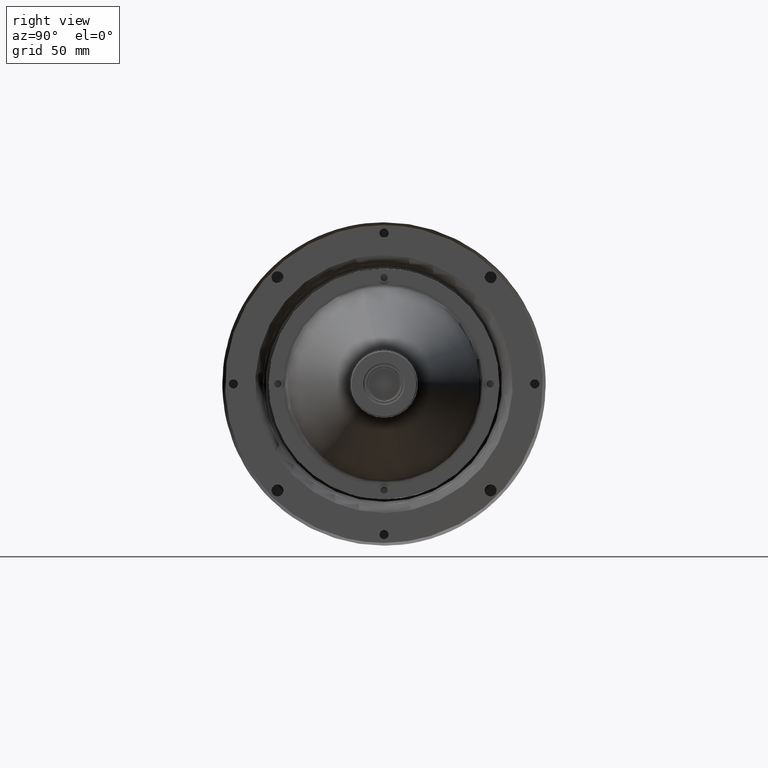
[diagram: clean part render]
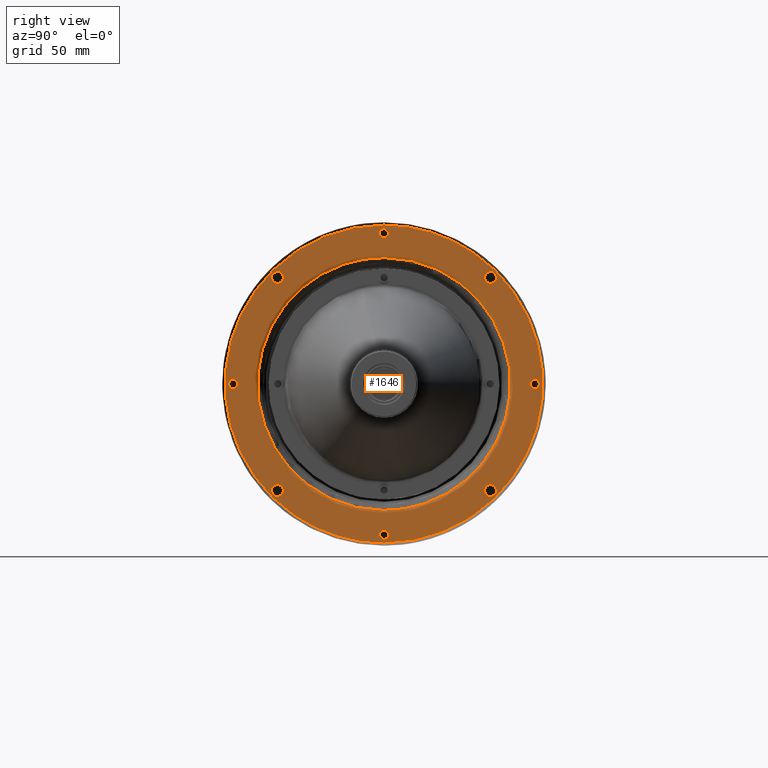
[diagram: same view with one face highlighted and labeled with its STEP entity id]
A machine part, right view. The second image highlights one B-rep face of the part: STEP entity #1646.
In plain terms, the highlighted planar face has unit normal (1, 0, 0).
Its self-contained STEP definition (entity closure, byte-faithful):
#1 = CARTESIAN_POINT ( 'NONE',  ( 152.0389117151870551, -54.99412155382960066, -9.212940494826550974 ) ) ;
#6 = CARTESIAN_POINT ( 'NONE',  ( 152.0389117161929846, -3.000007320924894959E-09, -154.9731538719080106 ) ) ;
#10 = CARTESIAN_POINT ( 'NONE',  ( 152.0389117160427759, -69.01470688993592262, -72.49842719486964882 ) ) ;
#88 = CARTESIAN_POINT ( 'NONE',  ( 152.0389117151869698, 1.999167105995378835, -148.9367870720627991 ) ) ;
#89 = CARTESIAN_POINT ( 'NONE',  ( 152.0389117151870266, -57.30885212915077886, -123.2172754247430078 ) ) ;
#102 = CARTESIAN_POINT ( 'NONE',  ( 152.0389117160862895, -60.03368661231577619, -102.5344377423510736 ) ) ;
#125 = CARTESIAN_POINT ( 'NONE',  ( 152.0389117333431841, -82.35670359767493665, -95.96019255417427019 ) ) ;
#127 = CARTESIAN_POINT ( 'NONE',  ( 152.0389117146874014, 8.623271893742373351, 18.20480479623995507 ) ) ;
#157 = CARTESIAN_POINT ( 'NONE',  ( 152.0389117151870551, -0.3272492347568590754, 16.52684612799821551 ) ) ;
#168 = CARTESIAN_POINT ( 'NONE',  ( 152.0389117158248951, 10.27754972801935907, -154.5153430743503975 ) ) ;
#193 = CARTESIAN_POINT ( 'NONE',  ( 152.0389117151870551, -1.259047450918690414, 11.84238015711056846 ) ) ;
#217 = CARTESIAN_POINT ( 'NONE',  ( 152.0389117191332957, -25.48818544027075461, -151.1442903453322799 ) ) ;
#307 = CARTESIAN_POINT ( 'NONE',  ( 152.0389117317797343, -70.68190507948034451, -118.7804306667896554 ) ) ;
#430 = CARTESIAN_POINT ( 'NONE',  ( 152.0389117155934855, 61.40953275300001479, -126.3826866236724698 ) ) ;
#466 = CARTESIAN_POINT ( 'NONE',  ( 152.0389117155935139, 61.40953275299998637, -10.06362111899351852 ) ) ;
#476 = CARTESIAN_POINT ( 'NONE',  ( 152.0389117151870266, -61.32494395216883021, -10.91430174317345703 ) ) ;
#505 = CARTESIAN_POINT ( 'NONE',  ( 152.0389117151869698, 80.06553402911498551, -69.48220132292688334 ) ) ;
#509 = CARTESIAN_POINT ( 'NONE',  ( 152.0389117161419961, -34.91277995079087759, -127.9090443758167908 ) ) ;
#526 = CARTESIAN_POINT ( 'NONE',  ( 152.0389117151870266, 1.999167105995755200, -152.0095206719366843 ) ) ;
#595 = CARTESIAN_POINT ( 'NONE',  ( 152.0389117151869982, -84.43446597088498606, -69.48220132292695439 ) ) ;
#596 = EDGE_CURVE ( 'NONE', #3230, #15714, #4693, .T. ) ;
#618 = CARTESIAN_POINT ( 'NONE',  ( 152.0389117151869982, -0.6543697108971793241, -152.9080855636703120 ) ) ;
#656 = CARTESIAN_POINT ( 'NONE',  ( 152.0389117155935139, -61.40953275299919056, -10.06362111900618928 ) ) ;
#727 = CARTESIAN_POINT ( 'NONE',  ( 152.0389117151869982, -59.01021337716064608, -13.22903231817284642 ) ) ;
#788 = CARTESIAN_POINT ( 'NONE',  ( 152.0389117151869698, 80.99095254907312835, -66.03868790111499720 ) ) ;
#804 = CARTESIAN_POINT ( 'NONE',  ( 152.0389117151870266, -81.92275076525119459, -65.72315387200067960 ) ) ;
#807 = CARTESIAN_POINT ( 'NONE',  ( 152.0389117241696226, -52.70790384935113337, 0.8698762821666425893 ) ) ;
#811 = CARTESIAN_POINT ( 'NONE',  ( 152.0389117151870266, 60.75844999059297891, -124.3854097838201085 ) ) ;
#834 = B_SPLINE_CURVE_WITH_KNOTS ( 'NONE', 3,
 ( #11628, #7257, #15719, #4638, #14328, #15987, #11535, #12938, #157, #4556, #5859, #3058, #4727, #17213, #7346, #3151, #10398, #15813 ),
 .UNSPECIFIED., .F., .F.,
 ( 4, 2, 2, 2, 2, 2, 2, 2, 4 ),
 ( 0.000000000000000000, 0.06249999999999979183, 0.1249999999999995837, 0.1874999999999996392, 0.2499999999999997224, 0.3124999999999997780, 0.3749999999999998335, 0.4374999999999999445, 0.5000000000000000000 ),
 .UNSPECIFIED. ) ;
#838 = ORIENTED_EDGE ( 'NONE', *, *, #9159, .F. ) ;
#904 = CARTESIAN_POINT ( 'NONE',  ( 152.0389117151869982, -57.30885212851272570, -129.5480978230855271 ) ) ;
#1024 = CARTESIAN_POINT ( 'NONE',  ( 152.0389117151870266, -61.32494395217204186, -9.212940494838562699 ) ) ;
#1041 = VERTEX_POINT ( 'NONE', #11750 ) ;
#1045 = CARTESIAN_POINT ( 'NONE',  ( 152.0389117155934855, -61.40953275299920477, -126.3826866243275617 ) ) ;
#1057 = EDGE_CURVE ( 'NONE', #11883, #12243, #17361, .T. ) ;
#1077 = CARTESIAN_POINT ( 'NONE',  ( 152.0389117151869982, -80.06553402911502815, -66.96410642107305478 ) ) ;
#1084 = CARTESIAN_POINT ( 'NONE',  ( 152.0389117155934855, -61.40953275299920477, -126.3826866243275617 ) ) ;
#1096 = CARTESIAN_POINT ( 'NONE',  ( 152.0389117151869414, -80.06553402911494288, -69.48220132292681228 ) ) ;
#1145 = CARTESIAN_POINT ( 'NONE',  ( 152.0389117155935139, 54.90953275300081060, -10.06362111900618928 ) ) ;
#1162 = CARTESIAN_POINT ( 'NONE',  ( 152.0389117161457477, 62.15059989655853911, -37.91456331197745300 ) ) ;
#1225 = CARTESIAN_POINT ( 'NONE',  ( 152.0389117160601131, -66.86193107717176076, -85.85238816400165263 ) ) ;
#1234 = EDGE_CURVE ( 'NONE', #17520, #13662, #11559, .T. ) ;
#1258 = CARTESIAN_POINT ( 'NONE',  ( 152.0389117160635806, 22.62515995098180710, -2.882432523093848786 ) ) ;
#1273 = B_SPLINE_CURVE_WITH_KNOTS ( 'NONE', 3,
 ( #14960, #13039, #7355, #10750, #9169, #2190, #2280, #10474, #9265, #17654, #16427, #4807, #15135, #14865, #505, #7869, #13469, #13560 ),
 .UNSPECIFIED., .F., .F.,
 ( 4, 2, 2, 2, 2, 2, 2, 2, 4 ),
 ( 0.5000000000000000000, 0.5625000000000000000, 0.6250000000000000000, 0.6875000000000000000, 0.7500000000000000000, 0.8125000000000000000, 0.8750000000000000000, 0.9375000000000000000, 1.000000000000000000 ),
 .UNSPECIFIED. ) ;
#1301 = CARTESIAN_POINT ( 'NONE',  ( 152.0389117151870266, -2.499999999998898215, -150.1459046372514763 ) ) ;
#1352 = CARTESIAN_POINT ( 'NONE',  ( 152.0389117160403316, 4.968528497421182522, 0.7451102337029836820 ) ) ;
#1400 = EDGE_CURVE ( 'NONE', #13410, #14537, #1884, .T. ) ;
#1402 = CARTESIAN_POINT ( 'NONE',  ( 152.0389117151870551, -58.58495675817889747, -6.813621119001631143 ) ) ;
#1467 = CARTESIAN_POINT ( 'NONE',  ( 152.0389117151870266, 55.31972699085328316, -11.70038280521040264 ) ) ;
#1507 = CARTESIAN_POINT ( 'NONE',  ( 152.0389117160097783, -30.51659014786231339, -6.174419357326474511 ) ) ;
#1515 = VERTEX_POINT ( 'NONE', #5938 ) ;
#1554 = CARTESIAN_POINT ( 'NONE',  ( 152.0389117160179921, 0.4622198219536600150, 0.7752979427080239905 ) ) ;
#1573 = CARTESIAN_POINT ( 'NONE',  ( 152.0389117163786921, 5.138817509494542968, -154.9731538735093181 ) ) ;
#1600 = CARTESIAN_POINT ( 'NONE',  ( 152.0389117151870551, -0.3272492347395297707, 11.52684612799953179 ) ) ;
#1646 = ADVANCED_FACE ( 'NONE', ( #7778, #6482, #8490, #4216, #16966, #8213, #9887, #12153, #13900, #8400 ), #9610, .F. ) ;
#1669 = CARTESIAN_POINT ( 'NONE',  ( 152.0389117103006242, 48.67100214513889256, 3.770620140393961428 ) ) ;
#1684 = CARTESIAN_POINT ( 'NONE',  ( 152.0389117151869982, -59.01021337748569096, -123.2172754249144759 ) ) ;
#1694 = CARTESIAN_POINT ( 'NONE',  ( 152.0389117155935139, 2.500000000000000444, 14.02684612800897845 ) ) ;
#1705 = CARTESIAN_POINT ( 'NONE',  ( 152.0389117160949866, 2.190188772344439839E-08, -137.2231538718500019 ) ) ;
#1752 = CARTESIAN_POINT ( 'NONE',  ( 152.0389117151870551, 60.75844999079803443, -12.06089795891303673 ) ) ;
#1788 = CARTESIAN_POINT ( 'NONE',  ( 152.0389117151871119, 57.30885212882736823, -6.898209919830389225 ) ) ;
#1848 = CARTESIAN_POINT ( 'NONE',  ( 152.0389117151870266, 1.536366799937754157, -152.4723209779947695 ) ) ;
#1876 = CARTESIAN_POINT ( 'NONE',  ( 152.0389117151870551, 54.90953275300082481, -9.638197113832658758 ) ) ;
#1884 = B_SPLINE_CURVE_WITH_KNOTS ( 'NONE', 3,
 ( #10496, #7615, #3332, #14617, #526, #1848, #2027, #7706, #16360, #13398, #618, #4919, #10592, #17768, #3516, #9377, #10953, #11054 ),
 .UNSPECIFIED., .F., .F.,
 ( 4, 2, 2, 2, 2, 2, 2, 2, 4 ),
 ( 0.5000000000000000000, 0.5625000000000000000, 0.6250000000000000000, 0.6875000000000000000, 0.7500000000000000000, 0.8125000000000000000, 0.8750000000000000000, 0.9375000000000000000, 1.000000000000000000 ),
 .UNSPECIFIED. ) ;
#1903 = VERTEX_POINT ( 'NONE', #2126 ) ;
#1921 = CARTESIAN_POINT ( 'NONE',  ( 152.0389117155935139, 2.500000000000002220, -150.4731538719998412 ) ) ;
#1928 = CARTESIAN_POINT ( 'NONE',  ( 152.0389117151869698, 59.79629443949202994, -129.2224923859857029 ) ) ;
#2027 = CARTESIAN_POINT ( 'NONE',  ( 152.0389117151870266, 1.259047450927802680, -152.6576198428849693 ) ) ;
#2126 = CARTESIAN_POINT ( 'NONE',  ( 152.0389117155935139, -54.90953275300000769, -10.06362111899351852 ) ) ;
#2150 = EDGE_CURVE ( 'NONE', #9433, #2761, #11186, .T. ) ;
#2181 = CARTESIAN_POINT ( 'NONE',  ( 152.0389117191332957, -25.48818544027075461, -151.1442903453322799 ) ) ;
#2183 = ORIENTED_EDGE ( 'NONE', *, *, #2775, .F. ) ;
#2190 = CARTESIAN_POINT ( 'NONE',  ( 152.0389117151869982, 83.78636679993684311, -70.22232097799488315 ) ) ;
#2204 = EDGE_CURVE ( 'NONE', #13662, #3230, #13178, .T. ) ;
#2217 = CARTESIAN_POINT ( 'NONE',  ( 152.0389117151869698, 59.79629443891963092, -123.5428808616843099 ) ) ;
#2244 = CARTESIAN_POINT ( 'NONE',  ( 152.0389117161898866, -0.3081488524913671978, -137.2226378062479171 ) ) ;
#2280 = CARTESIAN_POINT ( 'NONE',  ( 152.0389117151869698, 83.50904745092690007, -70.40761984288502617 ) ) ;
#2342 = ORIENTED_EDGE ( 'NONE', *, *, #16643, .F. ) ;
#2378 = CARTESIAN_POINT ( 'NONE',  ( 152.0389117151869982, 81.59563028910197602, -65.78822218032993874 ) ) ;
#2426 = VERTEX_POINT ( 'NONE', #10643 ) ;
#2492 = CARTESIAN_POINT ( 'NONE',  ( 152.0389117151869982, -54.99412155374221101, -127.2333672478484203 ) ) ;
#2507 = CARTESIAN_POINT ( 'NONE',  ( 152.0389117151869982, -79.81506830832992705, -68.87752358289799304 ) ) ;
#2571 = CARTESIAN_POINT ( 'NONE',  ( 152.0389117161039962, 45.86441879428804214, -16.47604943235702990 ) ) ;
#2597 = CARTESIAN_POINT ( 'NONE',  ( 152.0389117151869982, -82.90436971089795293, -70.65808556367011306 ) ) ;
#2618 = CARTESIAN_POINT ( 'NONE',  ( 152.0389117151869698, -59.79629443920959631, -7.223815356852483660 ) ) ;
#2650 = CARTESIAN_POINT ( 'NONE',  ( 152.0389117151745495, 4.311653689656339772, 18.52684612853854418 ) ) ;
#2653 = EDGE_LOOP ( 'NONE', ( #16330, #6101 ) ) ;
#2711 = CARTESIAN_POINT ( 'NONE',  ( 152.0389117151870266, -60.99933851515294236, -8.426859432800378968 ) ) ;
#2721 = CARTESIAN_POINT ( 'NONE',  ( 152.0389117160280534, -68.52654866975393588, -58.98086754761820316 ) ) ;
#2761 = VERTEX_POINT ( 'NONE', #3430 ) ;
#2775 = EDGE_CURVE ( 'NONE', #10781, #3408, #7458, .T. ) ;
#2807 = CARTESIAN_POINT ( 'NONE',  ( 152.0389117151870551, -59.01021337717267556, -6.898209919830389225 ) ) ;
#2851 = CARTESIAN_POINT ( 'NONE',  ( 152.0389117161971626, 68.52654866774065567, -77.46544021909672040 ) ) ;
#2880 = CARTESIAN_POINT ( 'NONE',  ( 152.0389117090518880, 60.63134477974255532, -5.967150331950336728 ) ) ;
#3005 = CARTESIAN_POINT ( 'NONE',  ( 152.0389117160058845, -54.77956289436469461, -26.02709696846480369 ) ) ;
#3026 = CARTESIAN_POINT ( 'NONE',  ( 152.0389117334458433, -85.96293711749663657, -80.96455820863430120 ) ) ;
#3046 = CARTESIAN_POINT ( 'NONE',  ( 152.0389117151870266, -79.75000000000071054, -68.55040310674878867 ) ) ;
#3058 = CARTESIAN_POINT ( 'NONE',  ( 152.0389117151870266, 1.259047450920001809, 16.21131209888943303 ) ) ;
#3059 = CARTESIAN_POINT ( 'NONE',  ( 152.0389117151869982, 54.99412155391527790, -127.2333672484864451 ) ) ;
#3136 = CARTESIAN_POINT ( 'NONE',  ( 152.0389117151870266, -84.24916710599484304, -69.75952067193689743 ) ) ;
#3151 = CARTESIAN_POINT ( 'NONE',  ( 152.0389117151870266, 2.434931691668535958, 14.68121583890646775 ) ) ;
#3152 = CARTESIAN_POINT ( 'NONE',  ( 152.0389117151869698, 61.40953275304289605, -126.8081106288459523 ) ) ;
#3154 = CARTESIAN_POINT ( 'NONE',  ( 152.0389117151869982, 61.32494395217364769, -10.91430174316144175 ) ) ;
#3230 = VERTEX_POINT ( 'NONE', #9397 ) ;
#3250 = CARTESIAN_POINT ( 'NONE',  ( 152.0389117151869982, 55.31972699068519006, -124.7459249380811599 ) ) ;
#3281 = CARTESIAN_POINT ( 'NONE',  ( 152.0389117151869982, -60.99933851514673222, -11.70038280521040264 ) ) ;
#3311 = CARTESIAN_POINT ( 'NONE',  ( 152.0389117151870266, -84.68493169167005874, -68.87752358289810672 ) ) ;
#3327 = CARTESIAN_POINT ( 'NONE',  ( 152.0389117151870266, 61.40953275300077507, -10.48904512416733859 ) ) ;
#3332 = CARTESIAN_POINT ( 'NONE',  ( 152.0389117151869982, 2.434931691670887410, -151.1275235828977372 ) ) ;
#3338 = CARTESIAN_POINT ( 'NONE',  ( 152.0389117151869982, 61.32494395208632199, -125.5320059995135296 ) ) ;
#3356 = CARTESIAN_POINT ( 'NONE',  ( 152.0389117155935139, -2.499999999999342304, 14.02684612799131081 ) ) ;
#3357 = CARTESIAN_POINT ( 'NONE',  ( 152.0389117151869982, 1.999167106000905081, 12.49047932807004280 ) ) ;
#3370 = CARTESIAN_POINT ( 'NONE',  ( 152.0389117162070534, 17.85308526480040570, -135.0256618765632766 ) ) ;
#3402 = CARTESIAN_POINT ( 'NONE',  ( 152.0389117160949866, -0.4622198219536199915, -137.2216056867081875 ) ) ;
#3408 = VERTEX_POINT ( 'NONE', #1045 ) ;
#3430 = CARTESIAN_POINT ( 'NONE',  ( 152.0389117155934855, 84.74999999999964473, -68.22315387199972747 ) ) ;
#3478 = B_SPLINE_CURVE_WITH_KNOTS ( 'NONE', 3,
 ( #430, #3152, #5861, #17308, #8738, #13301, #1928, #15814, #6219, #14521, #10400, #16168, #7521, #6129, #13122, #3059, #4557, #17570 ),
 .UNSPECIFIED., .F., .F.,
 ( 4, 2, 2, 2, 2, 2, 2, 2, 4 ),
 ( 0.5000000000000000000, 0.5625000000000000000, 0.6250000000000000000, 0.6875000000000000000, 0.7500000000000000000, 0.8125000000000000000, 0.8750000000000000000, 0.9375000000000000000, 1.000000000000000000 ),
 .UNSPECIFIED. ) ;
#3479 = VERTEX_POINT ( 'NONE', #1705 ) ;
#3516 = CARTESIAN_POINT ( 'NONE',  ( 152.0389117151869982, -2.184465970884419406, -151.7322013229272102 ) ) ;
#3553 = CARTESIAN_POINT ( 'NONE',  ( 152.0389117162102366, 22.18694539316939895, -133.7139714214603430 ) ) ;
#3574 = EDGE_CURVE ( 'NONE', #12243, #11883, #6287, .T. ) ;
#3590 = DIRECTION ( 'NONE',  ( 0.000000000000000000, 1.000000000000000000, 0.000000000000000000 ) ) ;
#3609 = CARTESIAN_POINT ( 'NONE',  ( 152.0389117151870266, -83.50904745092695691, -66.03868790111502562 ) ) ;
#3688 = CARTESIAN_POINT ( 'NONE',  ( 152.0389117151869698, 84.43446597088502870, -66.96410642107312583 ) ) ;
#3778 = CARTESIAN_POINT ( 'NONE',  ( 152.0389117155934855, 79.75000000000035527, -68.22315387199999748 ) ) ;
#3795 = CARTESIAN_POINT ( 'NONE',  ( 152.0389117151870266, -83.78636679993689995, -66.22398676600516865 ) ) ;
#3866 = CARTESIAN_POINT ( 'NONE',  ( 152.0389117151869414, 80.06553402911497130, -66.96410642107308320 ) ) ;
#3886 = B_SPLINE_CURVE_WITH_KNOTS ( 'NONE', 3,
 ( #12213, #5312, #2244, #6802 ),
 .UNSPECIFIED., .F., .F.,
 ( 4, 4 ),
 ( 0.000000000000000000, 1.000000000000000000 ),
 .UNSPECIFIED. ) ;
#3988 = CARTESIAN_POINT ( 'NONE',  ( 152.0389117151869698, -56.52277106650797123, -129.2224923859857029 ) ) ;
#4002 = CARTESIAN_POINT ( 'NONE',  ( 152.0389117151870266, -81.92275076525109512, -70.72315387199927272 ) ) ;
#4054 = CARTESIAN_POINT ( 'NONE',  ( 152.0389117151869982, 83.50904745092691428, -66.03868790111501141 ) ) ;
#4067 = CARTESIAN_POINT ( 'NONE',  ( 152.0389117162173989, 34.51217049214734089, -128.1415802290879640 ) ) ;
#4080 = CARTESIAN_POINT ( 'NONE',  ( 152.0389117151869698, -57.73410874749815491, -129.6326866239563174 ) ) ;
#4142 = CARTESIAN_POINT ( 'NONE',  ( 152.0389117218018669, -39.66371708656604511, 9.099284600796115896 ) ) ;
#4204 = CARTESIAN_POINT ( 'NONE',  ( 152.0389117151869698, -59.79629443949043832, -123.5428808620142860 ) ) ;
#4216 = FACE_BOUND ( 'NONE', #14139, .T. ) ;
#4300 = CARTESIAN_POINT ( 'NONE',  ( 152.0389117151869698, -55.31972699101351054, -124.7459249375087893 ) ) ;
#4315 = CARTESIAN_POINT ( 'NONE',  ( 152.0389117160301282, -4.506409830240810876, 0.7768461250012790309 ) ) ;
#4337 = CARTESIAN_POINT ( 'NONE',  ( 152.0389117266449546, -44.31308800458874941, -142.9782217599150158 ) ) ;
#4347 = VERTEX_POINT ( 'NONE', #17599 ) ;
#4350 = CARTESIAN_POINT ( 'NONE',  ( 152.0389117162192747, 54.77956287676636293, -110.4192107996645120 ) ) ;
#4397 = CARTESIAN_POINT ( 'NONE',  ( 152.0389117155935139, -2.499999999999429789, -150.4731538720001538 ) ) ;
#4411 = CARTESIAN_POINT ( 'NONE',  ( 152.0389117160078740, -34.51217052251811168, -8.304727532964378156 ) ) ;
#4470 = CARTESIAN_POINT ( 'NONE',  ( 152.0389117155935139, 61.40953275299998637, -10.06362111899351852 ) ) ;
#4477 = CARTESIAN_POINT ( 'NONE',  ( 152.0389117080393078, 70.68190509615918415, -17.66587705905896755 ) ) ;
#4492 = CARTESIAN_POINT ( 'NONE',  ( 152.0389117151870266, -0.3272492347485950748, -147.9731538720006370 ) ) ;
#4556 = CARTESIAN_POINT ( 'NONE',  ( 152.0389117151870266, 0.3272492347408425539, 16.52684612800046793 ) ) ;
#4557 = CARTESIAN_POINT ( 'NONE',  ( 152.0389117151869982, 54.90953275304446635, -126.8081106295010301 ) ) ;
#4564 = CARTESIAN_POINT ( 'NONE',  ( 152.0389117101821626, 60.49640625380057912, -130.6102901822148681 ) ) ;
#4638 = CARTESIAN_POINT ( 'NONE',  ( 152.0389117151869698, -2.184465970888775033, 15.28589357891933886 ) ) ;
#4675 = CARTESIAN_POINT ( 'NONE',  ( 152.0389117151870551, 57.73410874782113211, -6.813621119001631143 ) ) ;
#4693 = B_SPLINE_CURVE_WITH_KNOTS ( 'NONE', 3,
 ( #5539, #6594, #16362, #5446, #13400, #16801, #4142, #9289, #807, #11127, #9722, #16896, #15502, #9815, #8609, #17088, #8422, #15687, #7125, #11313, #3026, #12806, #125, #12708, #10201, #307, #15872, #15784, #14395, #10103, #4337, #18382, #17365, #217 ),
 .UNSPECIFIED., .F., .F.,
 ( 4, 2, 2, 2, 2, 2, 2, 2, 2, 2, 2, 2, 2, 2, 2, 2, 4 ),
 ( 0.000000000000000000, 0.05656725362737573259, 0.1131345072547514652, 0.1697017608821271839, 0.2262690145095029304, 0.2828362681368786768, 0.3394035217642543678, 0.3959707753916301143, 0.4525380290190058608, 0.5091052826463815517, 0.5656725362737573537, 0.6222397899011330447, 0.6788070435285087356, 0.7353742971558845376, 0.7919415507832602286, 0.8485088044106360305, 0.9050760580380117215 ),
 .UNSPECIFIED. ) ;
#4727 = CARTESIAN_POINT ( 'NONE',  ( 152.0389117151869414, 1.536366799930609650, 16.02601323400024569 ) ) ;
#4738 = EDGE_CURVE ( 'NONE', #2761, #9433, #1273, .T. ) ;
#4744 = CARTESIAN_POINT ( 'NONE',  ( 152.0389117151869982, 58.58495675784677559, -123.1326866239579090 ) ) ;
#4764 = CARTESIAN_POINT ( 'NONE',  ( 152.0389117151870266, 2.434931691673071885, 13.37247641711041091 ) ) ;
#4807 = CARTESIAN_POINT ( 'NONE',  ( 152.0389117151869982, 80.99095254907311414, -70.40761984288501196 ) ) ;
#4817 = CARTESIAN_POINT ( 'NONE',  ( 152.0389117144047759, 25.48818544174925904, 14.69798260656799549 ) ) ;
#4834 = CARTESIAN_POINT ( 'NONE',  ( 152.0389117155934855, 61.40953275300001479, -126.3826866236724698 ) ) ;
#4919 = CARTESIAN_POINT ( 'NONE',  ( 152.0389117151870266, -1.259047450926120248, -152.6576198428853104 ) ) ;
#4946 = CARTESIAN_POINT ( 'NONE',  ( 152.0389117151870551, 56.16225591307789955, -7.464703881210362546 ) ) ;
#5013 = CARTESIAN_POINT ( 'NONE',  ( 152.0389117151869698, 57.73410874749973942, -123.1326866240436857 ) ) ;
#5019 = CARTESIAN_POINT ( 'NONE',  ( 152.0389117151869414, -55.31972699084546718, -11.70038280519962015 ) ) ;
#5044 = CARTESIAN_POINT ( 'NONE',  ( 152.0389117161994648, 9.012709092967535085, -136.7802746106165728 ) ) ;
#5189 = CARTESIAN_POINT ( 'NONE',  ( 152.0389117151870266, -84.24916710599491410, -66.68678707206322542 ) ) ;
#5223 = B_SPLINE_CURVE_WITH_KNOTS ( 'NONE', 3,
 ( #5503, #12671, #11184, #18347, #11278, #16955, #4204, #1684, #7088, #8668, #89, #15925, #12767, #17052, #4300, #8761, #14263, #7282 ),
 .UNSPECIFIED., .F., .F.,
 ( 4, 2, 2, 2, 2, 2, 2, 2, 4 ),
 ( 0.000000000000000000, 0.06249999999999976408, 0.1249999999999995282, 0.1874999999999992784, 0.2499999999999990563, 0.3124999999999988343, 0.3749999999999985567, 0.4374999999999983347, 0.5000000000000000000 ),
 .UNSPECIFIED. ) ;
#5257 = VERTEX_POINT ( 'NONE', #3356 ) ;
#5281 = CARTESIAN_POINT ( 'NONE',  ( 152.0389117155935139, -79.75000000000035527, -68.22315387199974168 ) ) ;
#5312 = CARTESIAN_POINT ( 'NONE',  ( 152.0389117161900572, -0.1540744259949441419, -137.2231538718498882 ) ) ;
#5320 = CARTESIAN_POINT ( 'NONE',  ( 152.0389117151870551, -54.90953275300085323, -9.638197113820323736 ) ) ;
#5371 = CARTESIAN_POINT ( 'NONE',  ( 152.0389117151870266, -80.25083289400518538, -66.68678707206309753 ) ) ;
#5446 = CARTESIAN_POINT ( 'NONE',  ( 152.0389117187433214, -20.39332089744877408, 16.25218221978580146 ) ) ;
#5458 = CARTESIAN_POINT ( 'NONE',  ( 152.0389117151870266, -55.56061551520199515, -12.06089795891303673 ) ) ;
#5462 = CARTESIAN_POINT ( 'NONE',  ( 152.0389117162203547, 45.51674424379907435, -120.2763355484895840 ) ) ;
#5501 = CARTESIAN_POINT ( 'NONE',  ( 152.0389117151870266, 1.536366799937264993, -148.4739867660048560 ) ) ;
#5503 = CARTESIAN_POINT ( 'NONE',  ( 152.0389117155934855, -61.40953275299920477, -126.3826866243275617 ) ) ;
#5539 = CARTESIAN_POINT ( 'NONE',  ( 152.0389117159099897, 2.999991857794929749E-09, 18.52684612837909839 ) ) ;
#5548 = CARTESIAN_POINT ( 'NONE',  ( 152.0389117151870266, -56.16225591307630793, -12.66253835678964279 ) ) ;
#5582 = CARTESIAN_POINT ( 'NONE',  ( 152.0389117068346252, 83.85750422969837814, -45.42208084084664677 ) ) ;
#5611 = CARTESIAN_POINT ( 'NONE',  ( 152.0389117160148658, -22.18694542917494061, -2.732336335078154654 ) ) ;
#5676 = CARTESIAN_POINT ( 'NONE',  ( 152.0389117089752631, 70.57227303901193238, -118.9333523028455062 ) ) ;
#5746 = CARTESIAN_POINT ( 'NONE',  ( 152.0389117160573846, 18.30018386531991936, -1.541739672135786110 ) ) ;
#5751 = EDGE_LOOP ( 'NONE', ( #17165, #14497 ) ) ;
#5792 = CARTESIAN_POINT ( 'NONE',  ( 152.0389117151869982, 0.6543697108983255184, -148.0382221803296829 ) ) ;
#5859 = CARTESIAN_POINT ( 'NONE',  ( 152.0389117151869414, 0.6543697108902438719, 16.46177781967240961 ) ) ;
#5861 = CARTESIAN_POINT ( 'NONE',  ( 152.0389117151869982, 61.32494395225781147, -127.2333672478484203 ) ) ;
#5885 = CARTESIAN_POINT ( 'NONE',  ( 152.0389117151870551, -1.259047450926656486, -148.2886879011150540 ) ) ;
#5896 = CARTESIAN_POINT ( 'NONE',  ( 152.0389117151870266, 2.500000000001132872, 13.69959689325981600 ) ) ;
#5938 = CARTESIAN_POINT ( 'NONE',  ( 152.0389117160234775, -2.869615815090440053E-08, 0.7768461278715170781 ) ) ;
#5944 = CARTESIAN_POINT ( 'NONE',  ( 152.0389117160234775, -2.869615815090440053E-08, 0.7768461278715170781 ) ) ;
#5959 = CARTESIAN_POINT ( 'NONE',  ( 152.0389117117481703, 35.17760726438696395, 11.24071145850829723 ) ) ;
#6075 = CARTESIAN_POINT ( 'NONE',  ( 152.0389117151870266, 0.3272492347581711369, 11.52684612800179487 ) ) ;
#6101 = ORIENTED_EDGE ( 'NONE', *, *, #1057, .F. ) ;
#6129 = CARTESIAN_POINT ( 'NONE',  ( 152.0389117151869982, 55.56061551540863519, -128.3799634641798662 ) ) ;
#6131 = CARTESIAN_POINT ( 'NONE',  ( 152.0389117151869982, 57.73410874783346003, -13.31362111899998801 ) ) ;
#6143 = CARTESIAN_POINT ( 'NONE',  ( 152.0389117155934855, 54.90953275300078218, -126.3826866243275617 ) ) ;
#6210 = EDGE_CURVE ( 'NONE', #3479, #14232, #3886, .T. ) ;
#6219 = CARTESIAN_POINT ( 'NONE',  ( 152.0389117151869698, 58.58495675850186757, -129.6326866239563174 ) ) ;
#6232 = CARTESIAN_POINT ( 'NONE',  ( 152.0389117151869982, 57.30885212851433863, -123.2172754249144759 ) ) ;
#6263 = CARTESIAN_POINT ( 'NONE',  ( 152.0389117162154093, 30.51659011551170053, -130.2718884030641675 ) ) ;
#6266 = EDGE_CURVE ( 'NONE', #14537, #13410, #8335, .T. ) ;
#6287 = B_SPLINE_CURVE_WITH_KNOTS ( 'NONE', 3,
 ( #4470, #3327, #3154, #7162, #1752, #8642, #14332, #7435, #16077, #6131, #15990, #11805, #17484, #17217, #1467, #15904, #10141, #14434 ),
 .UNSPECIFIED., .F., .F.,
 ( 4, 2, 2, 2, 2, 2, 2, 2, 4 ),
 ( 0.5000000000000000000, 0.5625000000000000000, 0.6250000000000000000, 0.6875000000000000000, 0.7500000000000000000, 0.8125000000000000000, 0.8750000000000000000, 0.9375000000000000000, 1.000000000000000000 ),
 .UNSPECIFIED. ) ;
#6297 = CARTESIAN_POINT ( 'NONE',  ( 152.0389117155935139, -84.74999999999964473, -68.22315387200008274 ) ) ;
#6482 = FACE_BOUND ( 'NONE', #16887, .T. ) ;
#6594 = CARTESIAN_POINT ( 'NONE',  ( 152.0389117166714925, -5.138817507790526484, 18.52684612819135879 ) ) ;
#6599 = CARTESIAN_POINT ( 'NONE',  ( 152.0389117151869982, -56.16225591281927620, -128.9816038615922196 ) ) ;
#6644 = EDGE_LOOP ( 'NONE', ( #14762, #2342 ) ) ;
#6663 = CARTESIAN_POINT ( 'NONE',  ( 152.0389117151869698, 83.78636679993687153, -66.22398676600512601 ) ) ;
#6753 = CARTESIAN_POINT ( 'NONE',  ( 152.0389117151869982, 84.68493169167012979, -67.56878416110200192 ) ) ;
#6756 = EDGE_LOOP ( 'NONE', ( #12508, #11701 ) ) ;
#6789 = CARTESIAN_POINT ( 'NONE',  ( 152.0389117151870266, -80.99095254907307151, -70.40761984288498354 ) ) ;
#6802 = CARTESIAN_POINT ( 'NONE',  ( 152.0389117160949866, -0.4622198219536199915, -137.2216056867081875 ) ) ;
#6814 = EDGE_CURVE ( 'NONE', #17819, #3479, #15424, .T. ) ;
#6821 = CARTESIAN_POINT ( 'NONE',  ( 152.0389117160234775, -2.869615815090440053E-08, 0.7768461278715170781 ) ) ;
#6855 = CARTESIAN_POINT ( 'NONE',  ( 152.0389117161769263, 68.58692368446642718, -59.44012314566879951 ) ) ;
#6899 = CARTESIAN_POINT ( 'NONE',  ( 152.0389117151870551, 0.3272492347491292031, -147.9731538720005801 ) ) ;
#6951 = CARTESIAN_POINT ( 'NONE',  ( 152.0389117161250567, 55.06099831131574973, -26.39500313360558792 ) ) ;
#6966 = ORIENTED_EDGE ( 'NONE', *, *, #17572, .F. ) ;
#6978 = CARTESIAN_POINT ( 'NONE',  ( 152.0389117131039711, 35.00547002203470726, -147.7629993251396456 ) ) ;
#7010 = CARTESIAN_POINT ( 'NONE',  ( 152.0389117160048045, -45.51674426789689676, -16.16997221743332247 ) ) ;
#7043 = CARTESIAN_POINT ( 'NONE',  ( 152.0389117161180650, 52.20534519388775863, -22.88101384291218565 ) ) ;
#7088 = CARTESIAN_POINT ( 'NONE',  ( 152.0389117151869698, -58.58495675850028306, -123.1326866240436857 ) ) ;
#7093 = CARTESIAN_POINT ( 'NONE',  ( 152.0389117151870551, -57.30885212883777058, -6.898209919827161585 ) ) ;
#7102 = CARTESIAN_POINT ( 'NONE',  ( 152.0389117160110288, -61.94617306792985545, -37.49890658528546794 ) ) ;
#7123 = B_SPLINE_CURVE_WITH_KNOTS ( 'NONE', 3,
 ( #15470, #16960, #1024, #2711, #9975, #15657, #2618, #2807, #1402, #8295, #7093, #8394, #12400, #16866, #18080, #1, #5320, #11190 ),
 .UNSPECIFIED., .F., .F.,
 ( 4, 2, 2, 2, 2, 2, 2, 2, 4 ),
 ( 0.000000000000000000, 0.06250000000000001388, 0.1250000000000000278, 0.1874999999999999445, 0.2499999999999998890, 0.3124999999999998335, 0.3749999999999997224, 0.4374999999999998890, 0.5000000000000000000 ),
 .UNSPECIFIED. ) ;
#7125 = CARTESIAN_POINT ( 'NONE',  ( 152.0389117329614521, -86.86148704690081956, -65.56759170083778088 ) ) ;
#7162 = CARTESIAN_POINT ( 'NONE',  ( 152.0389117151869982, 60.99933851515452687, -11.70038280519962015 ) ) ;
#7184 = CARTESIAN_POINT ( 'NONE',  ( 152.0389117151870266, -0.6543697108977762911, -148.0382221803298819 ) ) ;
#7235 = CARTESIAN_POINT ( 'NONE',  ( 152.0389117161950878, 4.506409788409812656, -137.2231538718449428 ) ) ;
#7257 = CARTESIAN_POINT ( 'NONE',  ( 152.0389117151869982, -2.499999999999816591, 14.35409536274018016 ) ) ;
#7258 = CARTESIAN_POINT ( 'NONE',  ( 152.0389117179678919, -8.623271893191500226, -154.6511125362524979 ) ) ;
#7266 = CARTESIAN_POINT ( 'NONE',  ( 152.0389117110908330, 52.70790386784560155, -137.3161840294424110 ) ) ;
#7282 = CARTESIAN_POINT ( 'NONE',  ( 152.0389117155934855, -54.90953275299999348, -126.3826866236724698 ) ) ;
#7291 = CARTESIAN_POINT ( 'NONE',  ( 152.0389117155935139, -2.499999999999342304, 14.02684612799131081 ) ) ;
#7346 = CARTESIAN_POINT ( 'NONE',  ( 152.0389117151870266, 2.184465970881362740, 15.28589357893449119 ) ) ;
#7355 = CARTESIAN_POINT ( 'NONE',  ( 152.0389117151869982, 84.68493169167011558, -68.87752358289806409 ) ) ;
#7356 = CARTESIAN_POINT ( 'NONE',  ( 152.0389117075110335, 76.15637661471598108, -26.36414949085341064 ) ) ;
#7435 = CARTESIAN_POINT ( 'NONE',  ( 152.0389117151869982, 59.01021337717424586, -13.22903231816961522 ) ) ;
#7458 = B_SPLINE_CURVE_WITH_KNOTS ( 'NONE', 3,
 ( #9750, #14044, #2492, #8358, #15341, #6599, #3988, #904, #4080, #9845, #12279, #17957, #11061, #9567, #10874, #13678, #16741, #1084 ),
 .UNSPECIFIED., .F., .F.,
 ( 4, 2, 2, 2, 2, 2, 2, 2, 4 ),
 ( 0.5000000000000000000, 0.5625000000000000000, 0.6250000000000000000, 0.6875000000000000000, 0.7500000000000000000, 0.8125000000000000000, 0.8750000000000000000, 0.9375000000000000000, 1.000000000000000000 ),
 .UNSPECIFIED. ) ;
#7506 = CARTESIAN_POINT ( 'NONE',  ( 152.0389117151869982, -84.74999999999926104, -68.55040310674893078 ) ) ;
#7521 = CARTESIAN_POINT ( 'NONE',  ( 152.0389117151869698, 56.16225591334473677, -128.9816038619947847 ) ) ;
#7555 = CARTESIAN_POINT ( 'NONE',  ( 152.0389117151870835, 55.31972699084706591, -8.426859432800378968 ) ) ;
#7598 = CARTESIAN_POINT ( 'NONE',  ( 152.0389117161848560, -4.968528496513934911, -137.1914179776265428 ) ) ;
#7615 = CARTESIAN_POINT ( 'NONE',  ( 152.0389117151870266, 2.500000000000042188, -150.8004031067485471 ) ) ;
#7637 = CARTESIAN_POINT ( 'NONE',  ( 152.0389117151869982, -2.184465970880048236, 12.76779867706551563 ) ) ;
#7706 = CARTESIAN_POINT ( 'NONE',  ( 152.0389117151870266, 0.6543697108989228184, -152.9080855636701983 ) ) ;
#7778 = FACE_OUTER_BOUND ( 'NONE', #17195, .T. ) ;
#7857 = B_SPLINE_CURVE_WITH_KNOTS ( 'NONE', 3,
 ( #11041, #14904, #16906, #5019, #5458, #5548, #11230, #10695, #16721, #9639, #727, #12099, #17779, #16372, #3281, #476, #14929, #656 ),
 .UNSPECIFIED., .F., .F.,
 ( 4, 2, 2, 2, 2, 2, 2, 2, 4 ),
 ( 0.5000000000000000000, 0.5625000000000000000, 0.6250000000000000000, 0.6875000000000000000, 0.7500000000000000000, 0.8125000000000000000, 0.8750000000000000000, 0.9375000000000000000, 1.000000000000000000 ),
 .UNSPECIFIED. ) ;
#7869 = CARTESIAN_POINT ( 'NONE',  ( 152.0389117151869982, 79.81506830832991284, -68.87752358289803567 ) ) ;
#7973 = ORIENTED_EDGE ( 'NONE', *, *, #6210, .F. ) ;
#8126 = CARTESIAN_POINT ( 'NONE',  ( 152.0389117161678030, -18.30018386175431289, -134.9045680724544525 ) ) ;
#8166 = CARTESIAN_POINT ( 'NONE',  ( 152.0389117151870266, -84.74999999999930367, -67.89590463725123470 ) ) ;
#8176 = EDGE_LOOP ( 'NONE', ( #8229, #14671, #14628, #7973 ) ) ;
#8213 = FACE_BOUND ( 'NONE', #11271, .T. ) ;
#8229 = ORIENTED_EDGE ( 'NONE', *, *, #6814, .F. ) ;
#8234 = CARTESIAN_POINT ( 'NONE',  ( 152.0389117151869982, 84.74999999999930367, -67.89590463725119207 ) ) ;
#8236 = B_SPLINE_CURVE_WITH_KNOTS ( 'NONE', 3,
 ( #17949, #8166, #16359, #17855, #5189, #3795, #3609, #10770, #11053, #804, #9468, #10952, #15156, #5371, #1077, #12361, #9285, #5281 ),
 .UNSPECIFIED., .F., .F.,
 ( 4, 2, 2, 2, 2, 2, 2, 2, 4 ),
 ( 0.000000000000000000, 0.06250000000000000000, 0.1250000000000000000, 0.1875000000000000000, 0.2500000000000000000, 0.3125000000000000000, 0.3750000000000000000, 0.4375000000000000000, 0.5000000000000000000 ),
 .UNSPECIFIED. ) ;
#8247 = CARTESIAN_POINT ( 'NONE',  ( 152.0389117160179921, 0.4622198219536600150, 0.7752979427080239905 ) ) ;
#8272 = CARTESIAN_POINT ( 'NONE',  ( 152.0389117151870266, -83.50904745092684323, -70.40761984288506881 ) ) ;
#8295 = CARTESIAN_POINT ( 'NONE',  ( 152.0389117151870835, -57.73410874783186841, -6.813621119000015547 ) ) ;
#8335 = B_SPLINE_CURVE_WITH_KNOTS ( 'NONE', 3,
 ( #4397, #1301, #11183, #15745, #17146, #15838, #5885, #7184, #4492, #6899, #5792, #15461, #5501, #88, #18257, #11562, #12765, #16860 ),
 .UNSPECIFIED., .F., .F.,
 ( 4, 2, 2, 2, 2, 2, 2, 2, 4 ),
 ( 0.000000000000000000, 0.06250000000000001388, 0.1250000000000000278, 0.1875000000000000555, 0.2500000000000000000, 0.3125000000000000000, 0.3749999999999999445, 0.4375000000000000000, 0.5000000000000000000 ),
 .UNSPECIFIED. ) ;
#8358 = CARTESIAN_POINT ( 'NONE',  ( 152.0389117151869414, -55.31972699068357713, -128.0194483099187721 ) ) ;
#8366 = EDGE_CURVE ( 'NONE', #1903, #4347, #7857, .T. ) ;
#8394 = CARTESIAN_POINT ( 'NONE',  ( 152.0389117151869982, -56.52277106679957797, -7.223815356846272628 ) ) ;
#8400 = FACE_BOUND ( 'NONE', #8176, .T. ) ;
#8422 = CARTESIAN_POINT ( 'NONE',  ( 152.0389117319443244, -85.02405061991200341, -50.25427080079035136 ) ) ;
#8435 = CARTESIAN_POINT ( 'NONE',  ( 152.0389117160831347, 34.91277995728437133, -8.537263371234111275 ) ) ;
#8490 = FACE_BOUND ( 'NONE', #6756, .T. ) ;
#8494 = CARTESIAN_POINT ( 'NONE',  ( 152.0389117160325725, -68.98451901428302335, -63.48565817728820093 ) ) ;
#8527 = CARTESIAN_POINT ( 'NONE',  ( 152.0389117162085597, 65.41613639384227952, -90.62933222819918910 ) ) ;
#8547 = CARTESIAN_POINT ( 'NONE',  ( 152.0389117212588985, -21.36683419709402543, -152.4111058178535245 ) ) ;
#8555 = CARTESIAN_POINT ( 'NONE',  ( 152.0389117122686002, 30.40019228070866575, 13.18813683955264793 ) ) ;
#8609 = CARTESIAN_POINT ( 'NONE',  ( 152.0389117304654292, -80.50850390072882590, -35.50693858675427350 ) ) ;
#8642 = CARTESIAN_POINT ( 'NONE',  ( 152.0389117151869982, 60.15680959292369323, -12.66253835678964279 ) ) ;
#8650 = CARTESIAN_POINT ( 'NONE',  ( 152.0389117066958704, 85.96293714275748243, -55.48174952098166557 ) ) ;
#8667 = B_SPLINE_CURVE_WITH_KNOTS ( 'NONE', 3,
 ( #15354, #3046, #2507, #1096, #14415, #12379, #6789, #16752, #4002, #9671, #2597, #8272, #10219, #3136, #595, #3311, #7506, #6297 ),
 .UNSPECIFIED., .F., .F.,
 ( 4, 2, 2, 2, 2, 2, 2, 2, 4 ),
 ( 0.5000000000000000000, 0.5625000000000000000, 0.6250000000000000000, 0.6875000000000000000, 0.7500000000000000000, 0.8125000000000000000, 0.8750000000000000000, 0.9375000000000000000, 1.000000000000000000 ),
 .UNSPECIFIED. ) ;
#8668 = CARTESIAN_POINT ( 'NONE',  ( 152.0389117151869982, -57.73410874815324689, -123.1326866239579090 ) ) ;
#8677 = CARTESIAN_POINT ( 'NONE',  ( 152.0389117151870266, 0.6543697109071235918, 11.59191443633211982 ) ) ;
#8717 = ORIENTED_EDGE ( 'NONE', *, *, #14420, .F. ) ;
#8738 = CARTESIAN_POINT ( 'NONE',  ( 152.0389117151869698, 60.75844999099556532, -128.3799634636560825 ) ) ;
#8761 = CARTESIAN_POINT ( 'NONE',  ( 152.0389117151869982, -54.99412155391367207, -125.5320059995135296 ) ) ;
#8835 = CARTESIAN_POINT ( 'NONE',  ( 152.0389117066770552, 86.56753450045891896, -60.60528556323611582 ) ) ;
#8929 = CARTESIAN_POINT ( 'NONE',  ( 152.0389117151869698, 55.56061551500605589, -124.3854097843439490 ) ) ;
#8951 = CARTESIAN_POINT ( 'NONE',  ( 152.0389117151870266, 60.99933851514832384, -8.426859432789603588 ) ) ;
#9159 = EDGE_CURVE ( 'NONE', #10321, #2426, #8236, .T. ) ;
#9169 = CARTESIAN_POINT ( 'NONE',  ( 152.0389117151869698, 84.24916710599489988, -69.75952067193686901 ) ) ;
#9196 = CARTESIAN_POINT ( 'NONE',  ( 152.0389117151869698, 61.40953275295713354, -125.9572626184989019 ) ) ;
#9222 = CARTESIAN_POINT ( 'NONE',  ( 152.0389117151870266, 60.15680959291383800, -7.464703881202781943 ) ) ;
#9265 = CARTESIAN_POINT ( 'NONE',  ( 152.0389117151869698, 82.57724923474883383, -70.72315387199930115 ) ) ;
#9285 = CARTESIAN_POINT ( 'NONE',  ( 152.0389117151869982, -79.75000000000073896, -67.89590463725110681 ) ) ;
#9289 = CARTESIAN_POINT ( 'NONE',  ( 152.0389117233787601, -48.51500746313713819, 3.875833604044093494 ) ) ;
#9329 = CARTESIAN_POINT ( 'NONE',  ( 152.0389117155934855, 79.75000000000035527, -68.22315387199999748 ) ) ;
#9358 = CARTESIAN_POINT ( 'NONE',  ( 152.0389117155934855, 84.74999999999964473, -68.22315387199972747 ) ) ;
#9369 = VERTEX_POINT ( 'NONE', #17530 ) ;
#9377 = CARTESIAN_POINT ( 'NONE',  ( 152.0389117151870266, -2.434931691669581788, -151.1275235828983625 ) ) ;
#9397 = CARTESIAN_POINT ( 'NONE',  ( 152.0389117159099897, 2.999991857794929749E-09, 18.52684612837909839 ) ) ;
#9433 = VERTEX_POINT ( 'NONE', #9329 ) ;
#9468 = CARTESIAN_POINT ( 'NONE',  ( 152.0389117151869982, -81.59563028910204707, -65.78822218032992453 ) ) ;
#9567 = CARTESIAN_POINT ( 'NONE',  ( 152.0389117151869982, -60.75844999059135887, -128.3799634641798662 ) ) ;
#9610 = PLANE ( 'NONE',  #15854 ) ;
#9639 = CARTESIAN_POINT ( 'NONE',  ( 152.0389117151870266, -58.58495675816654824, -13.31362111899998801 ) ) ;
#9663 = CARTESIAN_POINT ( 'NONE',  ( 152.0389117161929846, -3.000007320924894959E-09, -154.9731538719080106 ) ) ;
#9671 = CARTESIAN_POINT ( 'NONE',  ( 152.0389117151870266, -82.57724923474877698, -70.72315387199930115 ) ) ;
#9677 = CARTESIAN_POINT ( 'NONE',  ( 152.0389117160179921, 0.4622198219536600150, 0.7752979427080239905 ) ) ;
#9722 = CARTESIAN_POINT ( 'NONE',  ( 152.0389117264762717, -64.09188295627234311, -9.535842783669448153 ) ) ;
#9750 = CARTESIAN_POINT ( 'NONE',  ( 152.0389117155934855, -54.90953275299999348, -126.3826866236724698 ) ) ;
#9815 = CARTESIAN_POINT ( 'NONE',  ( 152.0389117298819031, -78.42523546171014459, -30.78717671355130037 ) ) ;
#9819 = CARTESIAN_POINT ( 'NONE',  ( 152.0389117132634453, 21.36683419922010430, 15.96479808224211538 ) ) ;
#9843 = CARTESIAN_POINT ( 'NONE',  ( 152.0389117160352725, 0.3081488382281080685, 0.7763300623434054026 ) ) ;
#9845 = CARTESIAN_POINT ( 'NONE',  ( 152.0389117151869982, -58.58495675784516266, -129.6326866240420941 ) ) ;
#9887 = FACE_BOUND ( 'NONE', #6644, .T. ) ;
#9890 = CARTESIAN_POINT ( 'NONE',  ( 152.0389117160794967, -62.15059988907231769, -98.53174444503402185 ) ) ;
#9952 = CARTESIAN_POINT ( 'NONE',  ( 152.0389117067408620, 86.86148707385464718, -70.87871603169276113 ) ) ;
#9973 = ORIENTED_EDGE ( 'NONE', *, *, #16967, .F. ) ;
#9975 = CARTESIAN_POINT ( 'NONE',  ( 152.0389117151870266, -60.75844999079642861, -8.066344279086962388 ) ) ;
#10008 = CARTESIAN_POINT ( 'NONE',  ( 152.0389117137318351, 17.15089723741320782, 16.92377550200011171 ) ) ;
#10044 = B_SPLINE_CURVE_WITH_KNOTS ( 'NONE', 3,
 ( #3402, #7598, #11975, #8126, #13813, #13291, #509, #17659, #10570, #16247, #12886, #102, #9890, #15760, #1225, #16970, #10, #8494, #2721, #12504, #11483, #7102, #14277, #3005, #12688, #7010, #13995, #4411, #1507, #5611, #18362, #14184, #4315, #6821 ),
 .UNSPECIFIED., .F., .F.,
 ( 4, 2, 2, 2, 2, 2, 2, 2, 2, 2, 2, 2, 2, 2, 2, 2, 4 ),
 ( 0.000000000000000000, 0.06249999999999994449, 0.1249999999999998890, 0.1874999999999998335, 0.2499999999999997780, 0.3124999999999997224, 0.3749999999999996669, 0.4374999999999996669, 0.4999999999999996669, 0.5624999999999996669, 0.6249999999999997780, 0.6874999999999997780, 0.7499999999999998890, 0.8124999999999998890, 0.8750000000000000000, 0.9374999999999998890, 1.000000000000000000 ),
 .UNSPECIFIED. ) ;
#10050 = CARTESIAN_POINT ( 'NONE',  ( 152.0389117069546785, 82.35670362028986347, -40.48611517322068210 ) ) ;
#10103 = CARTESIAN_POINT ( 'NONE',  ( 152.0389117275815920, -48.67100213653605323, -140.2169278687480301 ) ) ;
#10141 = CARTESIAN_POINT ( 'NONE',  ( 152.0389117151870551, 54.90953275300244485, -10.48904512417967894 ) ) ;
#10147 = CARTESIAN_POINT ( 'NONE',  ( 152.0389117125801874, 39.66371710045432764, -145.5455923489945746 ) ) ;
#10201 = CARTESIAN_POINT ( 'NONE',  ( 152.0389117326178905, -76.15637659549348371, -110.0821582352480021 ) ) ;
#10219 = CARTESIAN_POINT ( 'NONE',  ( 152.0389117151869982, -83.78636679993678626, -70.22232097799493999 ) ) ;
#10238 = CARTESIAN_POINT ( 'NONE',  ( 152.0389117072929253, 78.50610785672854774, -30.95707041674130977 ) ) ;
#10263 = CARTESIAN_POINT ( 'NONE',  ( 152.0389117151869982, 1.536366799944467898, 12.02767902201039973 ) ) ;
#10321 = VERTEX_POINT ( 'NONE', #17277 ) ;
#10332 = ORIENTED_EDGE ( 'NONE', *, *, #16142, .F. ) ;
#10348 = CARTESIAN_POINT ( 'NONE',  ( 152.0389117151870835, 60.75844999079046715, -8.066344279077101831 ) ) ;
#10398 = CARTESIAN_POINT ( 'NONE',  ( 152.0389117151870266, 2.499999999998864020, 14.35409536275751741 ) ) ;
#10400 = CARTESIAN_POINT ( 'NONE',  ( 152.0389117151869698, 57.30885212915237048, -129.5480978232570237 ) ) ;
#10415 = CARTESIAN_POINT ( 'NONE',  ( 152.0389117151870266, 59.01021337684924362, -123.2172754247430078 ) ) ;
#10436 = CARTESIAN_POINT ( 'NONE',  ( 152.0389117151870266, 54.99412155382795930, -9.212940494838562699 ) ) ;
#10474 = CARTESIAN_POINT ( 'NONE',  ( 152.0389117151869982, 82.90436971089800977, -70.65808556367011306 ) ) ;
#10496 = CARTESIAN_POINT ( 'NONE',  ( 152.0389117155935139, 2.500000000000002220, -150.4731538719998412 ) ) ;
#10570 = CARTESIAN_POINT ( 'NONE',  ( 152.0389117161211914, -45.86441878643766046, -119.9702583175182298 ) ) ;
#10592 = CARTESIAN_POINT ( 'NONE',  ( 152.0389117151869982, -1.536366799936119465, -152.4723209779951674 ) ) ;
#10619 = CARTESIAN_POINT ( 'NONE',  ( 152.0389117151870266, 59.79629443920042320, -7.223815356846272628 ) ) ;
#10632 = EDGE_CURVE ( 'NONE', #10760, #1041, #17966, .T. ) ;
#10643 = CARTESIAN_POINT ( 'NONE',  ( 152.0389117155935139, -79.75000000000035527, -68.22315387199974168 ) ) ;
#10695 = CARTESIAN_POINT ( 'NONE',  ( 152.0389117151870266, -57.30885212882574820, -13.22903231816961522 ) ) ;
#10750 = CARTESIAN_POINT ( 'NONE',  ( 152.0389117151869414, 84.43446597088500027, -69.48220132292689755 ) ) ;
#10755 = CARTESIAN_POINT ( 'NONE',  ( 152.0389117151869698, 79.75000000000071054, -67.89590463725113523 ) ) ;
#10760 = VERTEX_POINT ( 'NONE', #16739 ) ;
#10761 = CARTESIAN_POINT ( 'NONE',  ( 152.0389117155935139, -2.499999999999429789, -150.4731538720001538 ) ) ;
#10770 = CARTESIAN_POINT ( 'NONE',  ( 152.0389117151870266, -82.90436971089806661, -65.78822218032993874 ) ) ;
#10781 = VERTEX_POINT ( 'NONE', #10958 ) ;
#10866 = EDGE_CURVE ( 'NONE', #1515, #17819, #16644, .T. ) ;
#10874 = CARTESIAN_POINT ( 'NONE',  ( 152.0389117151869698, -60.99933851498490611, -128.0194483104912138 ) ) ;
#10946 = ORIENTED_EDGE ( 'NONE', *, *, #15302, .F. ) ;
#10952 = CARTESIAN_POINT ( 'NONE',  ( 152.0389117151870266, -80.99095254907317099, -66.03868790111492615 ) ) ;
#10953 = CARTESIAN_POINT ( 'NONE',  ( 152.0389117151869982, -2.499999999998817390, -150.8004031067491724 ) ) ;
#10958 = CARTESIAN_POINT ( 'NONE',  ( 152.0389117155934855, -54.90953275299999348, -126.3826866236724698 ) ) ;
#11041 = CARTESIAN_POINT ( 'NONE',  ( 152.0389117155935139, -54.90953275300000769, -10.06362111899351852 ) ) ;
#11053 = CARTESIAN_POINT ( 'NONE',  ( 152.0389117151870266, -82.57724923474893330, -65.72315387200075065 ) ) ;
#11054 = CARTESIAN_POINT ( 'NONE',  ( 152.0389117155935139, -2.499999999999429789, -150.4731538720001538 ) ) ;
#11061 = CARTESIAN_POINT ( 'NONE',  ( 152.0389117151869698, -60.15680959265527861, -128.9816038619947847 ) ) ;
#11127 = CARTESIAN_POINT ( 'NONE',  ( 152.0389117257183784, -60.49640623265112538, -5.836017563861039648 ) ) ;
#11140 = CARTESIAN_POINT ( 'NONE',  ( 152.0389117162198716, 42.01233949685978075, -123.1437425359759601 ) ) ;
#11183 = CARTESIAN_POINT ( 'NONE',  ( 152.0389117151870266, -2.434931691669741216, -149.8187841611022293 ) ) ;
#11184 = CARTESIAN_POINT ( 'NONE',  ( 152.0389117151869982, -61.32494395225620565, -125.5320060001515401 ) ) ;
#11186 = B_SPLINE_CURVE_WITH_KNOTS ( 'NONE', 3,
 ( #3778, #10755, #15404, #3866, #13745, #15139, #788, #2378, #12156, #16432, #13834, #4054, #6663, #18022, #3688, #6753, #8234, #9358 ),
 .UNSPECIFIED., .F., .F.,
 ( 4, 2, 2, 2, 2, 2, 2, 2, 4 ),
 ( 0.000000000000000000, 0.06250000000000000000, 0.1250000000000000000, 0.1875000000000000000, 0.2500000000000000000, 0.3125000000000000000, 0.3750000000000000000, 0.4375000000000000000, 0.5000000000000000000 ),
 .UNSPECIFIED. ) ;
#11190 = CARTESIAN_POINT ( 'NONE',  ( 152.0389117155935139, -54.90953275300000769, -10.06362111899351852 ) ) ;
#11230 = CARTESIAN_POINT ( 'NONE',  ( 152.0389117151870266, -56.52277106678882035, -12.90342688114751546 ) ) ;
#11235 = CARTESIAN_POINT ( 'NONE',  ( 152.0389117161587649, 65.56476398022589080, -46.25569035306044441 ) ) ;
#11271 = EDGE_LOOP ( 'NONE', ( #10946, #13140 ) ) ;
#11278 = CARTESIAN_POINT ( 'NONE',  ( 152.0389117151869698, -60.75844999099396659, -124.3854097843439490 ) ) ;
#11313 = CARTESIAN_POINT ( 'NONE',  ( 152.0389117333459694, -86.56753447451544048, -75.84102216729392865 ) ) ;
#11317 = CARTESIAN_POINT ( 'NONE',  ( 152.0389117144047759, 25.48818544174925904, 14.69798260656799549 ) ) ;
#11329 = CARTESIAN_POINT ( 'NONE',  ( 152.0389117161651029, 66.86193108268730612, -50.59391959671438599 ) ) ;
#11357 = CARTESIAN_POINT ( 'NONE',  ( 152.0389117107641823, 44.31308801189953073, 6.531914030648620084 ) ) ;
#11403 = ORIENTED_EDGE ( 'NONE', *, *, #2204, .F. ) ;
#11424 = CARTESIAN_POINT ( 'NONE',  ( 152.0389117162163188, 59.80249388452919845, -102.9358238126696961 ) ) ;
#11454 = CARTESIAN_POINT ( 'NONE',  ( 152.0389117068234555, 86.55083741052784774, -76.02843993962490288 ) ) ;
#11483 = CARTESIAN_POINT ( 'NONE',  ( 152.0389117160166563, -65.41613640115974704, -45.81697554015618579 ) ) ;
#11535 = CARTESIAN_POINT ( 'NONE',  ( 152.0389117151869982, -1.259047450933831414, 16.21131209888069691 ) ) ;
#11545 = CARTESIAN_POINT ( 'NONE',  ( 152.0389117072671468, 83.80793888930725188, -91.20574132733321449 ) ) ;
#11559 = B_SPLINE_CURVE_WITH_KNOTS ( 'NONE', 3,
 ( #14440, #1573, #168, #14339, #12657, #6978, #10147, #15636, #7266, #4564, #13040, #5676, #17033, #18333, #14529, #11545, #17315, #11454, #9952, #8835, #8650, #5582, #10050, #10238, #7356, #4477, #15908, #2880, #12949, #1669, #11357, #5959, #8555, #17130 ),
 .UNSPECIFIED., .F., .F.,
 ( 4, 2, 2, 2, 2, 2, 2, 2, 2, 2, 2, 2, 2, 2, 2, 2, 4 ),
 ( 0.000000000000000000, 0.05656725362749213948, 0.1131345072549842790, 0.1697017608824764601, 0.2262690145099686689, 0.2828362681374608778, 0.3394035217649530312, 0.3959707753924452400, 0.4525380290199374489, 0.5091052826474296022, 0.5656725362749217556, 0.6222397899024139090, 0.6788070435299059513, 0.7353742971573981047, 0.7919415507848902580, 0.8485088044123824114, 0.9050760580398744537 ),
 .UNSPECIFIED. ) ;
#11562 = CARTESIAN_POINT ( 'NONE',  ( 152.0389117151870551, 2.434931691670726650, -149.8187841611016893 ) ) ;
#11572 = CARTESIAN_POINT ( 'NONE',  ( 152.0389117151869698, -1.536366799929296922, 12.02767902199975403 ) ) ;
#11628 = CARTESIAN_POINT ( 'NONE',  ( 152.0389117155935139, -2.499999999999342304, 14.02684612799131081 ) ) ;
#11701 = ORIENTED_EDGE ( 'NONE', *, *, #2150, .F. ) ;
#11747 = CARTESIAN_POINT ( 'NONE',  ( 152.0389117151870266, -0.6543697108889338088, 11.59191443632758656 ) ) ;
#11750 = CARTESIAN_POINT ( 'NONE',  ( 152.0389117155934855, 61.40953275300001479, -126.3826866236724698 ) ) ;
#11805 = CARTESIAN_POINT ( 'NONE',  ( 152.0389117151869982, 56.52277106680116958, -12.90342688115373093 ) ) ;
#11816 = CARTESIAN_POINT ( 'NONE',  ( 152.0389117151869982, 54.99412155374380973, -125.5320060001515401 ) ) ;
#11883 = VERTEX_POINT ( 'NONE', #1145 ) ;
#11975 = CARTESIAN_POINT ( 'NONE',  ( 152.0389117161793990, -9.471759913779479234, -136.7183616846185998 ) ) ;
#12028 = B_SPLINE_CURVE_WITH_KNOTS ( 'NONE', 3,
 ( #1694, #5896, #4764, #13243, #3357, #10263, #14466, #8677, #6075, #1600, #11747, #193, #11572, #17428, #7637, #16110, #17513, #7291 ),
 .UNSPECIFIED., .F., .F.,
 ( 4, 2, 2, 2, 2, 2, 2, 2, 4 ),
 ( 0.5000000000000000000, 0.5625000000000000000, 0.6250000000000000000, 0.6875000000000000000, 0.7500000000000000000, 0.8125000000000000000, 0.8750000000000000000, 0.9375000000000000000, 1.000000000000000000 ),
 .UNSPECIFIED. ) ;
#12029 = CARTESIAN_POINT ( 'NONE',  ( 152.0389117160949866, 2.190188772344439839E-08, -137.2231538718500019 ) ) ;
#12099 = CARTESIAN_POINT ( 'NONE',  ( 152.0389117151870266, -59.79629443919883869, -12.90342688115373093 ) ) ;
#12153 = FACE_BOUND ( 'NONE', #2653, .T. ) ;
#12156 = CARTESIAN_POINT ( 'NONE',  ( 152.0389117151869698, 81.92275076525116617, -65.72315387200069381 ) ) ;
#12213 = CARTESIAN_POINT ( 'NONE',  ( 152.0389117160949866, 2.190188772344439839E-08, -137.2231538718500019 ) ) ;
#12243 = VERTEX_POINT ( 'NONE', #15753 ) ;
#12279 = CARTESIAN_POINT ( 'NONE',  ( 152.0389117151869698, -59.01021337684763779, -129.5480978232570237 ) ) ;
#12361 = CARTESIAN_POINT ( 'NONE',  ( 152.0389117151870266, -79.81506830832994126, -67.56878416110194507 ) ) ;
#12379 = CARTESIAN_POINT ( 'NONE',  ( 152.0389117151870266, -80.71363320006310005, -70.22232097799481210 ) ) ;
#12400 = CARTESIAN_POINT ( 'NONE',  ( 152.0389117151870266, -56.16225591308617027, -7.464703881202781943 ) ) ;
#12504 = CARTESIAN_POINT ( 'NONE',  ( 152.0389117160200385, -66.74233549147523092, -50.14641793224968325 ) ) ;
#12508 = ORIENTED_EDGE ( 'NONE', *, *, #4738, .F. ) ;
#12537 = CARTESIAN_POINT ( 'NONE',  ( 152.0389117162141588, 61.94617305666524487, -98.94740118346045676 ) ) ;
#12657 = CARTESIAN_POINT ( 'NONE',  ( 152.0389117141755264, 25.37019196092290230, -151.3394778154488165 ) ) ;
#12671 = CARTESIAN_POINT ( 'NONE',  ( 152.0389117151870266, -61.40953275304131154, -125.9572626191540792 ) ) ;
#12688 = CARTESIAN_POINT ( 'NONE',  ( 152.0389117160050318, -51.90043420777497118, -22.53231607982199947 ) ) ;
#12708 = CARTESIAN_POINT ( 'NONE',  ( 152.0389117329299040, -78.50610783630069989, -105.4892373096800213 ) ) ;
#12719 = CARTESIAN_POINT ( 'NONE',  ( 152.0389117161824117, 69.01470689225686783, -63.94788056919372110 ) ) ;
#12765 = CARTESIAN_POINT ( 'NONE',  ( 152.0389117151869982, 2.499999999999962697, -150.1459046372508794 ) ) ;
#12767 = CARTESIAN_POINT ( 'NONE',  ( 152.0389117151869698, -56.16225591334313094, -123.7837693860052042 ) ) ;
#12806 = CARTESIAN_POINT ( 'NONE',  ( 152.0389117334444506, -83.85750420610187916, -91.02422688720167798 ) ) ;
#12819 = CARTESIAN_POINT ( 'NONE',  ( 152.0389117160764840, 30.93155982068660848, -6.380237250364253043 ) ) ;
#12840 = CARTESIAN_POINT ( 'NONE',  ( 152.0389117160949866, -0.4622198219536199915, -137.2216056867081875 ) ) ;
#12886 = CARTESIAN_POINT ( 'NONE',  ( 152.0389117161001025, -55.06099830308018284, -110.0513046196847995 ) ) ;
#12931 = CARTESIAN_POINT ( 'NONE',  ( 152.0389117160351304, 0.1540743974677911132, 0.7768461279453936497 ) ) ;
#12938 = CARTESIAN_POINT ( 'NONE',  ( 152.0389117151870266, -0.6543697109058111971, 16.46177781966787634 ) ) ;
#12949 = CARTESIAN_POINT ( 'NONE',  ( 152.0389117094444771, 56.83019824217767280, -2.478963906164351805 ) ) ;
#13039 = CARTESIAN_POINT ( 'NONE',  ( 152.0389117151869698, 84.74999999999930367, -68.55040310674887394 ) ) ;
#13040 = CARTESIAN_POINT ( 'NONE',  ( 152.0389117097562064, 64.09188297860806927, -126.9104649616457294 ) ) ;
#13122 = CARTESIAN_POINT ( 'NONE',  ( 152.0389117151869698, 55.31972699101510926, -128.0194483104912138 ) ) ;
#13140 = ORIENTED_EDGE ( 'NONE', *, *, #10632, .F. ) ;
#13178 = B_SPLINE_CURVE_WITH_KNOTS ( 'NONE', 3,
 ( #11317, #9819, #10008, #127, #2650, #15689 ),
 .UNSPECIFIED., .F., .F.,
 ( 4, 2, 4 ),
 ( 0.9050760580398744537, 0.9525380290199372268, 1.000000000000000000 ),
 .UNSPECIFIED. ) ;
#13243 = CARTESIAN_POINT ( 'NONE',  ( 152.0389117151870266, 2.184465970890089093, 12.76779867708065375 ) ) ;
#13246 = CARTESIAN_POINT ( 'NONE',  ( 152.0389117151870835, 61.32494395217040761, -9.212940494826550974 ) ) ;
#13291 = CARTESIAN_POINT ( 'NONE',  ( 152.0389117161487036, -30.93155981483025485, -130.0660704959138627 ) ) ;
#13301 = CARTESIAN_POINT ( 'NONE',  ( 152.0389117151869982, 60.15680959318070364, -128.9816038615922196 ) ) ;
#13398 = CARTESIAN_POINT ( 'NONE',  ( 152.0389117151870266, -0.3272492347479821206, -152.9731538719994717 ) ) ;
#13400 = CARTESIAN_POINT ( 'NONE',  ( 152.0389117194866344, -25.37019195214476497, 14.89317006756406059 ) ) ;
#13410 = VERTEX_POINT ( 'NONE', #1921 ) ;
#13469 = CARTESIAN_POINT ( 'NONE',  ( 152.0389117151869982, 79.75000000000072475, -68.55040310674884552 ) ) ;
#13560 = CARTESIAN_POINT ( 'NONE',  ( 152.0389117155934855, 79.75000000000035527, -68.22315387199999748 ) ) ;
#13587 = CARTESIAN_POINT ( 'NONE',  ( 152.0389117151869698, 60.15680959265686312, -123.7837693860052042 ) ) ;
#13662 = VERTEX_POINT ( 'NONE', #4817 ) ;
#13678 = CARTESIAN_POINT ( 'NONE',  ( 152.0389117151869982, -61.32494395208473037, -127.2333672484864451 ) ) ;
#13711 = ORIENTED_EDGE ( 'NONE', *, *, #596, .F. ) ;
#13745 = CARTESIAN_POINT ( 'NONE',  ( 152.0389117151869698, 80.25083289400511433, -66.68678707206315437 ) ) ;
#13813 = CARTESIAN_POINT ( 'NONE',  ( 152.0389117161616070, -22.62515994658946639, -133.5638752219538503 ) ) ;
#13834 = CARTESIAN_POINT ( 'NONE',  ( 152.0389117151869698, 82.90436971089803819, -65.78822218032991032 ) ) ;
#13900 = FACE_BOUND ( 'NONE', #5751, .T. ) ;
#13955 = CARTESIAN_POINT ( 'NONE',  ( 152.0389117201943918, -17.15089723589922244, -153.3700832390150595 ) ) ;
#13991 = DIRECTION ( 'NONE',  ( 1.000000000000000000, 0.000000000000000000, 0.000000000000000000 ) ) ;
#13995 = CARTESIAN_POINT ( 'NONE',  ( 152.0389117160053445, -42.01233952310402486, -13.30256522884255688 ) ) ;
#14044 = CARTESIAN_POINT ( 'NONE',  ( 152.0389117151869698, -54.90953275295709801, -126.8081106288459523 ) ) ;
#14123 = CARTESIAN_POINT ( 'NONE',  ( 152.0389117160969477, 42.37930097218104919, -13.58523134257558240 ) ) ;
#14139 = EDGE_LOOP ( 'NONE', ( #6966, #8717 ) ) ;
#14141 = B_SPLINE_CURVE_WITH_KNOTS ( 'NONE', 3,
 ( #16930, #8547, #13955, #7258, #18238, #9663 ),
 .UNSPECIFIED., .F., .F.,
 ( 4, 2, 4 ),
 ( 0.9050760580380117215, 0.9525380290190058608, 1.000000000000000000 ),
 .UNSPECIFIED. ) ;
#14184 = CARTESIAN_POINT ( 'NONE',  ( 152.0389117160257513, -9.012709133560781183, 0.3339668611158674305 ) ) ;
#14232 = VERTEX_POINT ( 'NONE', #12840 ) ;
#14263 = CARTESIAN_POINT ( 'NONE',  ( 152.0389117151869698, -54.90953275304285341, -125.9572626184989019 ) ) ;
#14277 = CARTESIAN_POINT ( 'NONE',  ( 152.0389117160088688, -59.80249389787237391, -33.51048395604342289 ) ) ;
#14312 = EDGE_LOOP ( 'NONE', ( #2183, #10332 ) ) ;
#14328 = CARTESIAN_POINT ( 'NONE',  ( 152.0389117151869982, -1.999167105999591465, 15.56321292792994626 ) ) ;
#14332 = CARTESIAN_POINT ( 'NONE',  ( 152.0389117151870551, 59.79629443921120213, -12.90342688114751546 ) ) ;
#14339 = CARTESIAN_POINT ( 'NONE',  ( 152.0389117147232980, 20.39332090445510204, -152.6984899672675908 ) ) ;
#14395 = CARTESIAN_POINT ( 'NONE',  ( 152.0389117292547780, -56.83019823091358091, -133.9673438207912852 ) ) ;
#14415 = CARTESIAN_POINT ( 'NONE',  ( 152.0389117151870266, -80.25083289400507169, -69.75952067193678374 ) ) ;
#14420 = EDGE_CURVE ( 'NONE', #5257, #9369, #834, .T. ) ;
#14434 = CARTESIAN_POINT ( 'NONE',  ( 152.0389117155935139, 54.90953275300081060, -10.06362111900618928 ) ) ;
#14440 = CARTESIAN_POINT ( 'NONE',  ( 152.0389117161929846, -3.000007320924894959E-09, -154.9731538719080106 ) ) ;
#14466 = CARTESIAN_POINT ( 'NONE',  ( 152.0389117151870266, 1.259047450935144141, 11.84238015711929570 ) ) ;
#14497 = ORIENTED_EDGE ( 'NONE', *, *, #6266, .F. ) ;
#14521 = CARTESIAN_POINT ( 'NONE',  ( 152.0389117151869982, 57.73410874815483140, -129.6326866240420941 ) ) ;
#14529 = CARTESIAN_POINT ( 'NONE',  ( 152.0389117077202741, 80.50850392769623909, -100.9393691525582426 ) ) ;
#14537 = VERTEX_POINT ( 'NONE', #10761 ) ;
#14617 = CARTESIAN_POINT ( 'NONE',  ( 152.0389117151869414, 2.184465970885873354, -151.7322013229267270 ) ) ;
#14628 = ORIENTED_EDGE ( 'NONE', *, *, #18327, .F. ) ;
#14643 = CARTESIAN_POINT ( 'NONE',  ( 152.0389117151870551, 59.01021337716225190, -6.898209919827161585 ) ) ;
#14671 = ORIENTED_EDGE ( 'NONE', *, *, #10866, .F. ) ;
#14762 = ORIENTED_EDGE ( 'NONE', *, *, #8366, .F. ) ;
#14865 = CARTESIAN_POINT ( 'NONE',  ( 152.0389117151869982, 80.25083289400512854, -69.75952067193686901 ) ) ;
#14904 = CARTESIAN_POINT ( 'NONE',  ( 152.0389117151870266, -54.90953275299921899, -10.48904512416733859 ) ) ;
#14929 = CARTESIAN_POINT ( 'NONE',  ( 152.0389117151869982, -61.40953275299757053, -10.48904512417967894 ) ) ;
#14960 = CARTESIAN_POINT ( 'NONE',  ( 152.0389117155934855, 84.74999999999964473, -68.22315387199972747 ) ) ;
#15135 = CARTESIAN_POINT ( 'NONE',  ( 152.0389117151869698, 80.71363320006315689, -70.22232097799489736 ) ) ;
#15139 = CARTESIAN_POINT ( 'NONE',  ( 152.0389117151869982, 80.71363320006315689, -66.22398676600511180 ) ) ;
#15140 = EDGE_CURVE ( 'NONE', #15714, #17520, #14141, .T. ) ;
#15156 = CARTESIAN_POINT ( 'NONE',  ( 152.0389117151869982, -80.71363320006322795, -66.22398676600511180 ) ) ;
#15302 = EDGE_CURVE ( 'NONE', #1041, #10760, #3478, .T. ) ;
#15328 = CARTESIAN_POINT ( 'NONE',  ( 152.0389117160458170, 9.471759915602442348, 0.2720539405904418562 ) ) ;
#15341 = CARTESIAN_POINT ( 'NONE',  ( 152.0389117151869698, -55.56061551500445717, -128.3799634636560825 ) ) ;
#15354 = CARTESIAN_POINT ( 'NONE',  ( 152.0389117155935139, -79.75000000000035527, -68.22315387199974168 ) ) ;
#15404 = CARTESIAN_POINT ( 'NONE',  ( 152.0389117151869982, 79.81506830832992705, -67.56878416110198771 ) ) ;
#15424 = B_SPLINE_CURVE_WITH_KNOTS ( 'NONE', 3,
 ( #8247, #1352, #15328, #5746, #1258, #12819, #8435, #14123, #2571, #7043, #6951, #18305, #1162, #11235, #11329, #6855, #12719, #16814, #2851, #18395, #8527, #12537, #11424, #4350, #18216, #5462, #11140, #4067, #6263, #3553, #3370, #5044, #7235, #12029 ),
 .UNSPECIFIED., .F., .F.,
 ( 4, 2, 2, 2, 2, 2, 2, 2, 2, 2, 2, 2, 2, 2, 2, 2, 4 ),
 ( 0.000000000000000000, 0.06250000000000001388, 0.1250000000000000000, 0.1874999999999999722, 0.2499999999999999722, 0.3124999999999999445, 0.3749999999999998890, 0.4374999999999999445, 0.4999999999999999445, 0.5624999999999998890, 0.6249999999999998890, 0.6874999999999998890, 0.7499999999999998890, 0.8125000000000000000, 0.8750000000000000000, 0.9375000000000000000, 1.000000000000000000 ),
 .UNSPECIFIED. ) ;
#15461 = CARTESIAN_POINT ( 'NONE',  ( 152.0389117151869698, 1.259047450927265999, -148.2886879011147414 ) ) ;
#15470 = CARTESIAN_POINT ( 'NONE',  ( 152.0389117155935139, -61.40953275299919056, -10.06362111900618928 ) ) ;
#15502 = CARTESIAN_POINT ( 'NONE',  ( 152.0389117286103158, -73.45707878796835644, -21.79011047393514389 ) ) ;
#15636 = CARTESIAN_POINT ( 'NONE',  ( 152.0389117115735758, 48.51500748016312059, -140.3221413517588587 ) ) ;
#15657 = CARTESIAN_POINT ( 'NONE',  ( 152.0389117151870266, -60.15680959292210872, -7.464703881210362546 ) ) ;
#15687 = CARTESIAN_POINT ( 'NONE',  ( 152.0389117326767519, -86.55083738324631781, -60.41786779399194529 ) ) ;
#15689 = CARTESIAN_POINT ( 'NONE',  ( 152.0389117159099897, 2.999991857794929749E-09, 18.52684612837909839 ) ) ;
#15714 = VERTEX_POINT ( 'NONE', #2181 ) ;
#15719 = CARTESIAN_POINT ( 'NONE',  ( 152.0389117151869698, -2.434931691671756937, 14.68121583888957993 ) ) ;
#15745 = CARTESIAN_POINT ( 'NONE',  ( 152.0389117151870266, -2.184465970884728492, -149.2141064210733532 ) ) ;
#15753 = CARTESIAN_POINT ( 'NONE',  ( 152.0389117155935139, 61.40953275299998637, -10.06362111899351852 ) ) ;
#15760 = CARTESIAN_POINT ( 'NONE',  ( 152.0389117160663091, -65.56476397391553235, -90.19061740643496705 ) ) ;
#15784 = CARTESIAN_POINT ( 'NONE',  ( 152.0389117299912130, -60.63134476710949627, -130.4791573945189498 ) ) ;
#15813 = CARTESIAN_POINT ( 'NONE',  ( 152.0389117155935139, 2.500000000000000444, 14.02684612800897845 ) ) ;
#15814 = CARTESIAN_POINT ( 'NONE',  ( 152.0389117151869982, 59.01021337748727547, -129.5480978230855271 ) ) ;
#15838 = CARTESIAN_POINT ( 'NONE',  ( 152.0389117151870835, -1.536366799936609961, -148.4739867660052539 ) ) ;
#15854 = AXIS2_PLACEMENT_3D ( 'NONE', #18180, #13991, #3590 ) ;
#15872 = CARTESIAN_POINT ( 'NONE',  ( 152.0389117312537053, -67.55725566948397898, -122.8856377989467177 ) ) ;
#15904 = CARTESIAN_POINT ( 'NONE',  ( 152.0389117151870266, 54.99412155383119227, -10.91430174317345703 ) ) ;
#15908 = CARTESIAN_POINT ( 'NONE',  ( 152.0389117083491897, 67.55725568482448296, -13.56066992696913509 ) ) ;
#15925 = CARTESIAN_POINT ( 'NONE',  ( 152.0389117151869698, -56.52277106708037024, -123.5428808616843099 ) ) ;
#15987 = CARTESIAN_POINT ( 'NONE',  ( 152.0389117151870266, -1.536366799943155392, 16.02601323398959821 ) ) ;
#15990 = CARTESIAN_POINT ( 'NONE',  ( 152.0389117151870266, 57.30885212883935509, -13.22903231817284642 ) ) ;
#16020 = CARTESIAN_POINT ( 'NONE',  ( 152.0389117151870551, 61.40953275299919056, -9.638197113820323736 ) ) ;
#16077 = CARTESIAN_POINT ( 'NONE',  ( 152.0389117151870551, 58.58495675818047488, -13.31362111899837153 ) ) ;
#16110 = CARTESIAN_POINT ( 'NONE',  ( 152.0389117151870551, -2.434931691667221898, 13.37247641709354085 ) ) ;
#16142 = EDGE_CURVE ( 'NONE', #3408, #10781, #5223, .T. ) ;
#16168 = CARTESIAN_POINT ( 'NONE',  ( 152.0389117151869982, 56.52277106708197607, -129.2224923863156505 ) ) ;
#16203 = CARTESIAN_POINT ( 'NONE',  ( 152.0389117151870266, 55.56061551520357966, -8.066344279086962388 ) ) ;
#16247 = CARTESIAN_POINT ( 'NONE',  ( 152.0389117161072079, -52.20534518566483229, -113.5652939091836089 ) ) ;
#16272 = CARTESIAN_POINT ( 'NONE',  ( 152.0389117151869698, 56.16225591282088203, -123.7837693864077977 ) ) ;
#16330 = ORIENTED_EDGE ( 'NONE', *, *, #3574, .F. ) ;
#16359 = CARTESIAN_POINT ( 'NONE',  ( 152.0389117151869982, -84.68493169167008716, -67.56878416110204455 ) ) ;
#16360 = CARTESIAN_POINT ( 'NONE',  ( 152.0389117151870266, 0.3272492347497421017, -152.9731538719993580 ) ) ;
#16362 = CARTESIAN_POINT ( 'NONE',  ( 152.0389117173357647, -10.27754972455020166, 18.06903532815196556 ) ) ;
#16372 = CARTESIAN_POINT ( 'NONE',  ( 152.0389117151870266, -60.75844999078885422, -12.06089795892290262 ) ) ;
#16427 = CARTESIAN_POINT ( 'NONE',  ( 152.0389117151869698, 81.59563028910196181, -70.65808556367011306 ) ) ;
#16432 = CARTESIAN_POINT ( 'NONE',  ( 152.0389117151869982, 82.57724923474886225, -65.72315387200070802 ) ) ;
#16597 = ORIENTED_EDGE ( 'NONE', *, *, #15140, .F. ) ;
#16643 = EDGE_CURVE ( 'NONE', #4347, #1903, #7123, .T. ) ;
#16644 = B_SPLINE_CURVE_WITH_KNOTS ( 'NONE', 3,
 ( #5944, #12931, #9843, #1554 ),
 .UNSPECIFIED., .F., .F.,
 ( 4, 4 ),
 ( 0.000000000000000000, 1.000000000000000000 ),
 .UNSPECIFIED. ) ;
#16721 = CARTESIAN_POINT ( 'NONE',  ( 152.0389117151870266, -57.73410874781951918, -13.31362111899837153 ) ) ;
#16739 = CARTESIAN_POINT ( 'NONE',  ( 152.0389117155934855, 54.90953275300078218, -126.3826866243275617 ) ) ;
#16741 = CARTESIAN_POINT ( 'NONE',  ( 152.0389117151869982, -61.40953275295555613, -126.8081106295010301 ) ) ;
#16752 = CARTESIAN_POINT ( 'NONE',  ( 152.0389117151870266, -81.59563028910191917, -70.65808556367005622 ) ) ;
#16801 = CARTESIAN_POINT ( 'NONE',  ( 152.0389117210159213, -35.00547000981551093, 11.31669157689670158 ) ) ;
#16814 = CARTESIAN_POINT ( 'NONE',  ( 152.0389117161925583, 68.98451901383688778, -72.96064958863266270 ) ) ;
#16860 = CARTESIAN_POINT ( 'NONE',  ( 152.0389117155935139, 2.500000000000002220, -150.4731538719998412 ) ) ;
#16866 = CARTESIAN_POINT ( 'NONE',  ( 152.0389117151870551, -55.56061551520957664, -8.066344279077101831 ) ) ;
#16887 = EDGE_LOOP ( 'NONE', ( #9973, #838 ) ) ;
#16896 = CARTESIAN_POINT ( 'NONE',  ( 152.0389117279222546, -70.57227301464742197, -17.51295544071439636 ) ) ;
#16906 = CARTESIAN_POINT ( 'NONE',  ( 152.0389117151869982, -54.99412155382638190, -10.91430174316144175 ) ) ;
#16930 = CARTESIAN_POINT ( 'NONE',  ( 152.0389117191332957, -25.48818544027075461, -151.1442903453322799 ) ) ;
#16955 = CARTESIAN_POINT ( 'NONE',  ( 152.0389117151869698, -60.15680959317911913, -123.7837693864077977 ) ) ;
#16960 = CARTESIAN_POINT ( 'NONE',  ( 152.0389117151870266, -61.40953275299919767, -9.638197113832658758 ) ) ;
#16966 = FACE_BOUND ( 'NONE', #14312, .T. ) ;
#16967 = EDGE_CURVE ( 'NONE', #2426, #10321, #8667, .T. ) ;
#16970 = CARTESIAN_POINT ( 'NONE',  ( 152.0389117160482613, -68.58692368094556002, -77.00618461733131426 ) ) ;
#17033 = CARTESIAN_POINT ( 'NONE',  ( 152.0389117086201907, 73.45707881317517263, -114.6561972686303505 ) ) ;
#17052 = CARTESIAN_POINT ( 'NONE',  ( 152.0389117151870266, -55.56061551540705779, -124.3854097838201085 ) ) ;
#17088 = CARTESIAN_POINT ( 'NONE',  ( 152.0389117314966825, -83.80793886181980668, -45.24056640968998266 ) ) ;
#17130 = CARTESIAN_POINT ( 'NONE',  ( 152.0389117144047759, 25.48818544174925904, 14.69798260656799549 ) ) ;
#17146 = CARTESIAN_POINT ( 'NONE',  ( 152.0389117151870266, -1.999167105994610782, -148.9367870720633107 ) ) ;
#17165 = ORIENTED_EDGE ( 'NONE', *, *, #1400, .F. ) ;
#17195 = EDGE_LOOP ( 'NONE', ( #13711, #11403, #18119, #16597 ) ) ;
#17213 = CARTESIAN_POINT ( 'NONE',  ( 152.0389117151870551, 1.999167105990255155, 15.56321292794381250 ) ) ;
#17217 = CARTESIAN_POINT ( 'NONE',  ( 152.0389117151869982, 55.56061551521116826, -12.06089795892290262 ) ) ;
#17277 = CARTESIAN_POINT ( 'NONE',  ( 152.0389117155935139, -84.74999999999964473, -68.22315387200008274 ) ) ;
#17308 = CARTESIAN_POINT ( 'NONE',  ( 152.0389117151869414, 60.99933851531642404, -128.0194483099187721 ) ) ;
#17315 = CARTESIAN_POINT ( 'NONE',  ( 152.0389117070865552, 85.02405064746038477, -86.19203693507290609 ) ) ;
#17361 = B_SPLINE_CURVE_WITH_KNOTS ( 'NONE', 3,
 ( #17705, #1876, #10436, #7555, #16203, #4946, #17431, #1788, #4675, #17608, #14643, #10619, #9222, #10348, #8951, #13246, #16020, #466 ),
 .UNSPECIFIED., .F., .F.,
 ( 4, 2, 2, 2, 2, 2, 2, 2, 4 ),
 ( 0.000000000000000000, 0.06250000000000001388, 0.1250000000000000278, 0.1874999999999999445, 0.2499999999999998890, 0.3124999999999998335, 0.3749999999999997224, 0.4374999999999998890, 0.5000000000000000000 ),
 .UNSPECIFIED. ) ;
#17365 = CARTESIAN_POINT ( 'NONE',  ( 152.0389117234676064, -30.40019227690282477, -149.6344445723724448 ) ) ;
#17428 = CARTESIAN_POINT ( 'NONE',  ( 152.0389117151870266, -1.999167105988941984, 12.49047932805619432 ) ) ;
#17431 = CARTESIAN_POINT ( 'NONE',  ( 152.0389117151869698, 56.52277106679039065, -7.223815356852483660 ) ) ;
#17484 = CARTESIAN_POINT ( 'NONE',  ( 152.0389117151870266, 56.16225591308776188, -12.66253835679722073 ) ) ;
#17495 = CARTESIAN_POINT ( 'NONE',  ( 152.0389117151869698, 56.52277106650956995, -123.5428808620142860 ) ) ;
#17513 = CARTESIAN_POINT ( 'NONE',  ( 152.0389117151869982, -2.499999999997548628, 13.69959689324249297 ) ) ;
#17520 = VERTEX_POINT ( 'NONE', #6 ) ;
#17530 = CARTESIAN_POINT ( 'NONE',  ( 152.0389117155935139, 2.500000000000000444, 14.02684612800897845 ) ) ;
#17570 = CARTESIAN_POINT ( 'NONE',  ( 152.0389117155934855, 54.90953275300078218, -126.3826866243275617 ) ) ;
#17572 = EDGE_CURVE ( 'NONE', #9369, #5257, #12028, .T. ) ;
#17586 = CARTESIAN_POINT ( 'NONE',  ( 152.0389117151869698, 60.99933851498651194, -124.7459249375087893 ) ) ;
#17599 = CARTESIAN_POINT ( 'NONE',  ( 152.0389117155935139, -61.40953275299919056, -10.06362111900618928 ) ) ;
#17608 = CARTESIAN_POINT ( 'NONE',  ( 152.0389117151871119, 58.58495675816816828, -6.813621119000015547 ) ) ;
#17654 = CARTESIAN_POINT ( 'NONE',  ( 152.0389117151869982, 81.92275076525113775, -70.72315387199930115 ) ) ;
#17659 = CARTESIAN_POINT ( 'NONE',  ( 152.0389117161282968, -42.37930096469046504, -122.8610764062739946 ) ) ;
#17705 = CARTESIAN_POINT ( 'NONE',  ( 152.0389117155935139, 54.90953275300081060, -10.06362111900618928 ) ) ;
#17768 = CARTESIAN_POINT ( 'NONE',  ( 152.0389117151870266, -1.999167105994234195, -152.0095206719371959 ) ) ;
#17773 = CARTESIAN_POINT ( 'NONE',  ( 152.0389117151870266, 54.90953275295871805, -125.9572626191540792 ) ) ;
#17779 = CARTESIAN_POINT ( 'NONE',  ( 152.0389117151869982, -60.15680959291223928, -12.66253835679722073 ) ) ;
#17819 = VERTEX_POINT ( 'NONE', #9677 ) ;
#17855 = CARTESIAN_POINT ( 'NONE',  ( 152.0389117151869414, -84.43446597088504291, -66.96410642107315425 ) ) ;
#17949 = CARTESIAN_POINT ( 'NONE',  ( 152.0389117155935139, -84.74999999999964473, -68.22315387200008274 ) ) ;
#17957 = CARTESIAN_POINT ( 'NONE',  ( 152.0389117151869982, -59.79629443891801799, -129.2224923863156505 ) ) ;
#17966 = B_SPLINE_CURVE_WITH_KNOTS ( 'NONE', 3,
 ( #6143, #17773, #11816, #3250, #8929, #16272, #17495, #6232, #5013, #4744, #10415, #2217, #13587, #811, #17586, #3338, #9196, #4834 ),
 .UNSPECIFIED., .F., .F.,
 ( 4, 2, 2, 2, 2, 2, 2, 2, 4 ),
 ( 0.000000000000000000, 0.06249999999999976408, 0.1249999999999995282, 0.1874999999999992784, 0.2499999999999990563, 0.3124999999999988343, 0.3749999999999985567, 0.4374999999999983347, 0.5000000000000000000 ),
 .UNSPECIFIED. ) ;
#18022 = CARTESIAN_POINT ( 'NONE',  ( 152.0389117151869982, 84.24916710599489988, -66.68678707206316858 ) ) ;
#18080 = CARTESIAN_POINT ( 'NONE',  ( 152.0389117151870266, -55.31972699085167733, -8.426859432789603588 ) ) ;
#18119 = ORIENTED_EDGE ( 'NONE', *, *, #1234, .F. ) ;
#18180 = CARTESIAN_POINT ( 'NONE',  ( 152.0389117160000012, 88.08988842499999805, -68.22315387200001169 ) ) ;
#18216 = CARTESIAN_POINT ( 'NONE',  ( 152.0389117162201558, 51.90043418800021868, -113.9139916877562939 ) ) ;
#18238 = CARTESIAN_POINT ( 'NONE',  ( 152.0389117168058988, -4.311653689456538707, -154.9731538701450972 ) ) ;
#18257 = CARTESIAN_POINT ( 'NONE',  ( 152.0389117151870266, 2.184465970885566044, -149.2141064210727848 ) ) ;
#18305 = CARTESIAN_POINT ( 'NONE',  ( 152.0389117161389265, 60.03368662018303326, -33.91187001339727658 ) ) ;
#18327 = EDGE_CURVE ( 'NONE', #14232, #1515, #10044, .T. ) ;
#18333 = CARTESIAN_POINT ( 'NONE',  ( 152.0389117079927246, 78.42523548821846191, -105.6591310268903783 ) ) ;
#18347 = CARTESIAN_POINT ( 'NONE',  ( 152.0389117151869982, -60.99933851531481821, -124.7459249380811599 ) ) ;
#18362 = CARTESIAN_POINT ( 'NONE',  ( 152.0389117160181058, -17.85308530248079961, -1.420645877784898481 ) ) ;
#18382 = CARTESIAN_POINT ( 'NONE',  ( 152.0389117245879049, -35.17760725947482570, -147.6870191900075042 ) ) ;
#18395 = CARTESIAN_POINT ( 'NONE',  ( 152.0389117162051207, 66.74233548602624921, -86.29988983568260608 ) ) ;